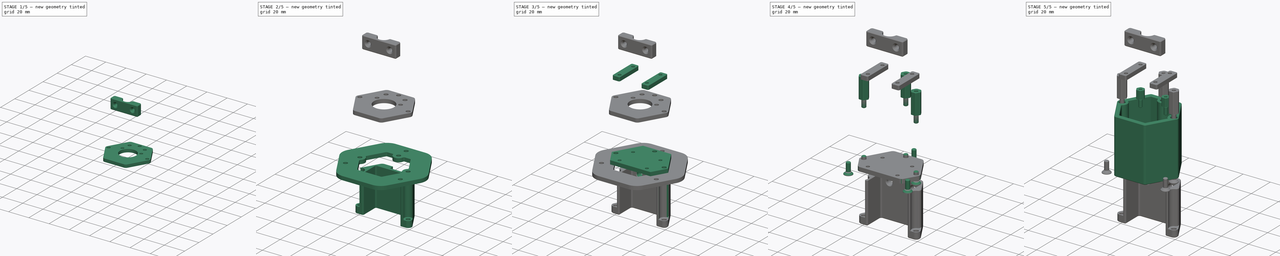
[diagram: build sequence overview — one tinted view per stage of 5, left to right]
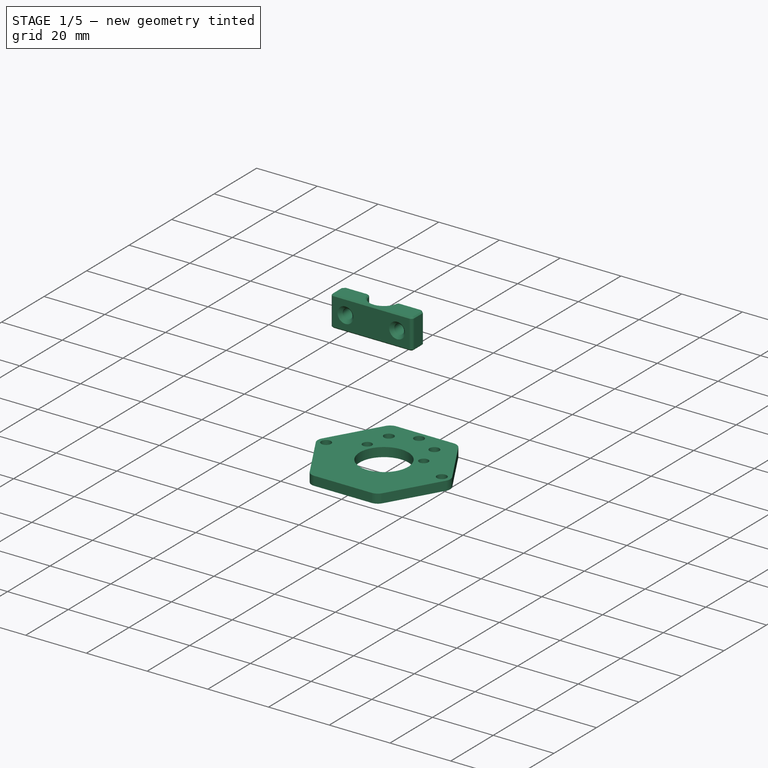
[diagram: stage 1 of 5 — iso view after this stage's code; geometry added in this stage tinted green]
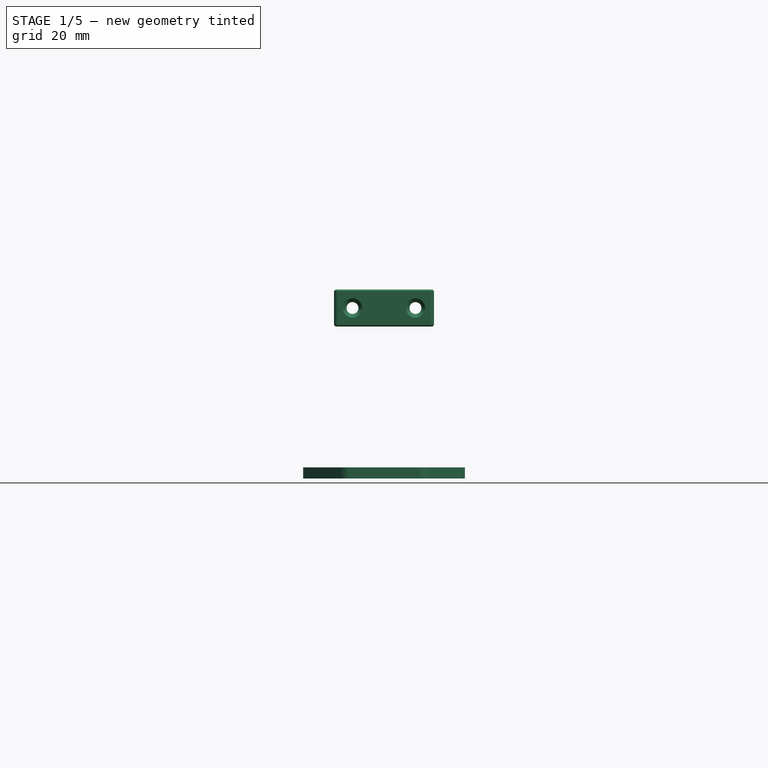
[diagram: stage 1 of 5 — front view after this stage's code; geometry added in this stage tinted green]
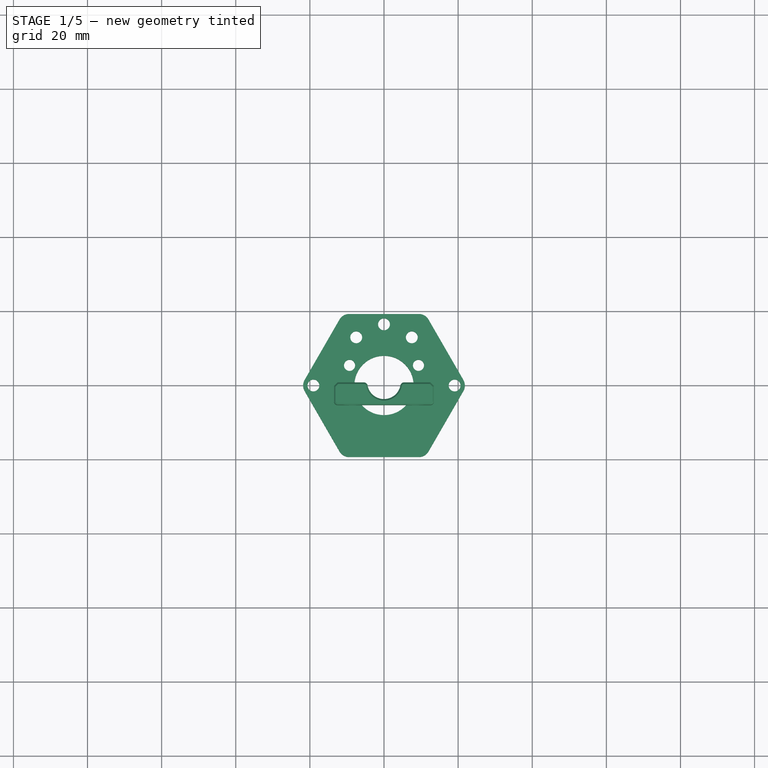
[diagram: stage 1 of 5 — top view after this stage's code; geometry added in this stage tinted green]
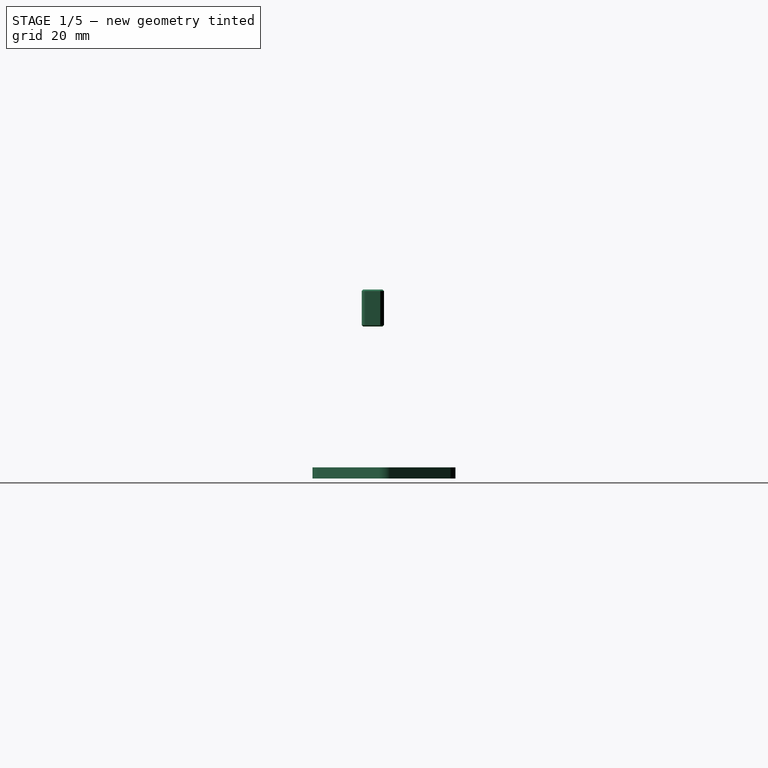
[diagram: stage 1 of 5 — right view after this stage's code; geometry added in this stage tinted green]
FCSTD DOCUMENT  (FreeCAD 2024.113R14555 (Git shallow))
Label: deplacement-sensor
License: Creative Commons Attribution-NoDerivatives
LicenseURL: http://creativecommons.org/licenses/by-nd/4.0/
objects: PartDesign::Fillet×15, Sketcher::SketchObject×13, Part::FeaturePython×11, PartDesign::Pad×8, PartDesign::Chamfer×7, PartDesign::Body×7, Part::SubShapeBinder×6, PartDesign::Pocket×5, App::DocumentObjectGroup×2, TechDraw::DrawProjGroupItem×2, TechDraw::DrawProjGroup×2, TechDraw::DrawSVGTemplate×1, PartDesign::Mirrored×1, App::Part×1, TechDraw::DrawPage×1
note: 158 computed .brp shape members not serialized (recipe doc carries the construction recipe); baked Part::Feature solids carry a one-line shape summary decoded from their .brp
EXTERNAL_REF file=../robot_holonome.FCStd obj=Part

FEATURE [Part::SubShapeBinder] Import001  label="Import001(Chamfer001)"
  BindCopyOnChange = 0
  BindMode = 0
  ClaimChildren = false
  Context = -> <external ../robot_holonome.FCStd>#Part [Link039.Body002.Import001.]
  EdgeTolerance = 1e-06
  FillStyle = 0
  Fuse = false
  InvalidShape = false
  MakeFace = false
  MergeEdges = true
  OffsetFill = false
  OffsetIntersection = false
  OffsetJoinType = 0
  OffsetOpenResult = false
  Outline = false
  PartialLoad = false
  Relative = true
  SplitEdges = false
  Support = -> [Body[Chamfer001.]]
  TightBound = false
  TreeRank = 45
  ValidateShape = true
  _Version = 8
FEATURE [Sketcher::SketchObject] Sketch004
  ArcFitTolerance = 1e-06
  AttachmentSupport = -> [Import001]
  ExternalBSplineMaxDegree = 5
  ExternalBSplineTolerance = 0.0001
  ExternalGeometry = -> [Import001]
  FullyConstrained = true
  InternalTolerance = 1e-06
  InvalidShape = false
  MakeInternals = true
  MapMode = 5
  Placement = pos=(0,0,40) rot=(0,0,1;0rad)
  Support = -> [Import001]
  TreeRank = 46
  ValidateShape = true
  sketch-geometry (26):
    g0: Circle CenterX=-19.0526 CenterY=1.233e-12 CenterZ=0 NormalX=0 NormalY=0 NormalZ=1 AngleXU=0 Radius=1.6
    g1: Circle CenterX=-1.1265e-12 CenterY=16.5 CenterZ=0 NormalX=0 NormalY=0 NormalZ=1 AngleXU=0 Radius=1.6
    g2: Circle CenterX=19.0526 CenterY=-3.5725e-12 CenterZ=0 NormalX=0 NormalY=0 NormalZ=1 AngleXU=0 Radius=1.6
    g3: Circle CenterX=7.21e-14 CenterY=2.4e-14 CenterZ=0 NormalX=0 NormalY=0 NormalZ=1 AngleXU=0 Radius=8
    g4: Circle CenterX=-9.3 CenterY=5.43 CenterZ=0 NormalX=0 NormalY=0 NormalZ=1 AngleXU=0 Radius=1.5
    g5: Circle CenterX=9.3 CenterY=5.43 CenterZ=0 NormalX=0 NormalY=0 NormalZ=1 AngleXU=0 Radius=1.5
    g6: LineSegment [constr] StartX=-12 StartY=-15.87 StartZ=0 EndX=-12 EndY=8.13 EndZ=0
    g7: LineSegment [constr] StartX=-12 StartY=8.13 StartZ=0 EndX=12 EndY=8.13 EndZ=0
    g8: LineSegment [constr] StartX=12 StartY=8.13 StartZ=0 EndX=12 EndY=-15.87 EndZ=0
    g9: LineSegment [constr] StartX=12 StartY=-15.87 StartZ=0 EndX=-12 EndY=-15.87 EndZ=0
    g10: GeomPoint [constr] X=7.801e-13 Y=-3.87 Z=0
    g11: LineSegment [constr] StartX=5.65685 StartY=5.65685 StartZ=0 EndX=-5.65685 EndY=5.65685 EndZ=0
    g12: LineSegment [constr] StartX=-5.65685 StartY=5.65685 StartZ=0 EndX=-5.65685 EndY=-5.65685 EndZ=0
    g13: LineSegment [constr] StartX=-5.65685 StartY=-5.65685 StartZ=0 EndX=5.65685 EndY=-5.65685 EndZ=0
    g14: LineSegment [constr] StartX=5.65685 StartY=-5.65685 StartZ=0 EndX=5.65685 EndY=5.65685 EndZ=0
    g15: Circle [constr] CenterX=7.21e-14 CenterY=2.4e-14 CenterZ=0 NormalX=0 NormalY=0 NormalZ=1 AngleXU=0 Radius=8
    g16: Circle CenterX=-7.5 CenterY=13 CenterZ=0 NormalX=0 NormalY=0 NormalZ=1 AngleXU=0 Radius=1.6
    g17: Circle CenterX=7.5 CenterY=13 CenterZ=0 NormalX=0 NormalY=0 NormalZ=1 AngleXU=0 Radius=1.6
    g18: Circle [constr] CenterX=7.5 CenterY=13 CenterZ=0 NormalX=0 NormalY=0 NormalZ=1 AngleXU=0 Radius=3.5
    g19: LineSegment StartX=-22.2857 StartY=1.963e-13 StartZ=0 EndX=-11.1429 EndY=-19.3 EndZ=0
    g20: LineSegment StartX=-11.1429 StartY=-19.3 StartZ=0 EndX=11.1429 EndY=-19.3 EndZ=0
    g21: LineSegment StartX=11.1429 StartY=-19.3 StartZ=0 EndX=22.2857 EndY=7.141e-13 EndZ=0
    g22: LineSegment StartX=22.2857 StartY=7.128e-13 StartZ=0 EndX=11.1429 EndY=19.3 EndZ=0
    g23: LineSegment StartX=11.1429 StartY=19.3 StartZ=0 EndX=-11.1429 EndY=19.3 EndZ=0
    g24: LineSegment StartX=-11.1429 StartY=19.3 StartZ=0 EndX=-22.2857 EndY=1.954e-13 EndZ=0
    g25: Circle [constr] CenterX=7.21e-14 CenterY=2.4e-14 CenterZ=0 NormalX=0 NormalY=0 NormalZ=1 AngleXU=0 Radius=22.2857
  constraints (64):
    c: Coincident(g0,g-4)
    c: Coincident(g1,g-3)
    c: Coincident(g2,g-5)
    c: Equal(g2,g1)
    c: Equal(g2,g0)
    c: Diameter(g2) = 3.2
    c: Coincident(g3,g-1)
    c: Diameter(g3) = 16
    c: Symmetric(g5,g4,g-2)
    c: Coincident(g6,g7)
    c: Coincident(g7,g8)
    c: Coincident(g8,g9)
    c: Coincident(g9,g6)
    c: Horizontal(g7)
    c: Horizontal(g9)
    c: Vertical(g6)
    c: Vertical(g8)
    c: Symmetric(g7,g6,g10)
    c: PointOnObject(g10,g-2)
    c: DistanceX(g7,g7) = 24
    c: DistanceY(g6,g6) = 24
    c: DistanceY(g3,g7) = 8.13
    c: DistanceY(g4,g6) = 2.7
    c: DistanceX(g6,g4) = 2.7
    c: Equal(g4,g5)
    c: Diameter(g4) = 3
    c: Coincident(g11,g12)
    c: Coincident(g12,g13)
    c: Coincident(g13,g14)
    c: Coincident(g14,g11)
    c: Equal(g11,g12)
    c: Equal(g11,g13)
    c: Equal(g11,g14)
    c: PointOnObject(g11,g15)
    c: PointOnObject(g12,g15)
    c: PointOnObject(g13,g15)
    c: PointOnObject(g14,g15)
    c: Coincident(g15,g3)
    c: PointOnObject(g14,g3)
    c: Horizontal(g11)
    c: DistanceX(g11,g11) = 11.3137
    c: Coincident(g18,g17)
    c: Equal(g17,g16)
    c: Diameter(g17) = 3.2
    c: Diameter(g18) = 7
    c: Symmetric(g17,g16,g-2)
    c: DistanceY(g3,g17) = 13
    c: DistanceX(g16,g17) = 15
    c: Coincident(g19,g20)
    c: Coincident(g20,g21)
    c: Coincident(g21,g22)
    c: Coincident(g22,g23)
    c: Coincident(g23,g24)
    c: Coincident(g24,g19)
    c: Equal(g19, g20-g24) x5
    c: PointOnObject(g19,g25)
    c: PointOnObject(g20,g25)
    c: PointOnObject(g21,g25)
    c: PointOnObject(g22,g25)
    c: PointOnObject(g23,g25)
    c: PointOnObject(g24,g25)
    c: Coincident(g25,g3)
    c: PointOnObject(g24,g-1)
    c: DistanceY(g3,g22) = 19.3
FEATURE [PartDesign::Pad] Pad003
  AddSubType = 0
  AlongSketchNormal = false
  AutoTaperInnerAngle = true
  CheckUpToFaceLimits = true
  ClaimChildren = false
  Direction = (0,0,1)
  Fit = 0
  FitJoin = 0
  InnerFit = 0
  InnerFitJoin = 0
  InvalidShape = false
  Length = 3
  Length2 = 100
  Linearize = true
  NewSolid = false
  Profile = -> Sketch004
  Refine = true
  Suppress = false
  TaperInnerAngle = 0
  TaperInnerAngleRev = 0
  TreeRank = 47
  Type = 0
  ValidateShape = true
  _ProfileBasedVersion = 1
FEATURE [PartDesign::Fillet] Fillet003
  AddSubType = 0
  Base = -> Pad003 [Edge11,Edge8,Edge5,Edge2,Edge1,Edge14]
  BaseFeature = -> Pad003
  InvalidShape = false
  NewSolid = false
  Radius = 3
  Refine = true
  SupportTransform = false
  Suppress = false
  TreeRank = 48
  UseAllEdges = false
  ValidateShape = true
FEATURE [PartDesign::Body] Body001  label="FixingPlate"
  AutoGroupSolids = false
  ClaimAllChildren = false
  ExportMode = 0
  Group = -> [Import,Sketch003,Pad002,Fillet002,Fillet012]
  InvalidShape = false
  Origin = -> Origin001
  SingleSolid = true
  Tip = -> Fillet012
  TreeRank = 30
  ValidateShape = true
  _ExportChildren = -> [Import,Pad002,Fillet002,Fillet012]
  _GroupVersion = 1
FEATURE [App::Part] Part  label="SensorDeplacement-assembled"
  ClaimAllChildren = false
  ExportMode = 1
  Group = -> [Body005,Body,Body001,Body002,Group,Body003,Body004,Standoff003,Standoff004,Screw007,Screw008,Standoff002,Screw006,Screw004,Screw005,Standoff001,Standoff,Screw003]
  Origin = -> Origin006
  TreeRank = 161
  _ExportChildren = -> [Body005,Body,Body001,Body002,Group,Body003,Body004]
  _GroupVersion = 1
FEATURE [TechDraw::DrawProjGroupItem] ProjItem  label="Front"
  CoarseView = false
  Direction = (0,0,-1)
  Focus = 100
  HardHidden = false
  IsoCount = 0
  IsoHidden = false
  IsoVisible = false
  LockPosition = true
  Perspective = false
  Rotation = 0
  RotationVector = (1,0,0)
  ScaleType = 2
  ScrubCount = 0
  SeamHidden = false
  SeamVisible = true
  SmoothHidden = false
  SmoothVisible = true
  Source = -> [Fillet012]
  TreeRank = 164
  Type = 0
  X = 0
  XDirection = (1,0,0)
  Y = 0
FEATURE [TechDraw::DrawProjGroup] ProjGroup
  Anchor = -> ProjItem
  AutoDistribute = true
  LockPosition = false
  ProjectionType = 0
  Rotation = 0
  ScaleType = 0
  Source = -> [Fillet012]
  TreeRank = 165
  Views = -> [ProjItem]
  X = 37.1712
  Y = 176.63
  spacingX = 15
  spacingY = 15
FEATURE [TechDraw::DrawProjGroupItem] ProjItem001  label="Front001"
  CoarseView = false
  Direction = (0,0,-1)
  Focus = 100
  HardHidden = false
  IsoCount = 0
  IsoHidden = false
  IsoVisible = false
  LockPosition = true
  Perspective = false
  Rotation = 0
  RotationVector = (1,0,0)
  ScaleType = 2
  ScrubCount = 0
  SeamHidden = false
  SeamVisible = true
  SmoothHidden = false
  SmoothVisible = true
  Source = -> [Fillet003]
  TreeRank = 167
  Type = 0
  X = 0
  XDirection = (1,0,0)
  Y = 0
FEATURE [TechDraw::DrawProjGroup] ProjGroup001
  Anchor = -> ProjItem001
  AutoDistribute = true
  LockPosition = false
  ProjectionType = 0
  Rotation = 0
  ScaleType = 0
  Source = -> [Fillet003]
  TreeRank = 168
  Views = -> [ProjItem001]
  X = 25.3767
  Y = 124.274
  spacingX = 15
  spacingY = 15
FEATURE [TechDraw::DrawPage] Page001  label="Laser3mmSensorDeplacement"
  KeepUpdated = true
  NextBalloonIndex = 1
  ProjectionType = 0
  Template = -> Template001
  TreeRank = 103
  Views = -> [ProjGroup,ProjGroup001]
FEATURE [App::DocumentObjectGroup] Group001  label="Laser"
  ClaimAllChildren = true
  ExportMode = 1
  Group = -> [Page001]
  TreeRank = 158
  _GroupVersion = 1
FEATURE [Part::SubShapeBinder] Import005  label="Import005(Chamfer003)"
  BindCopyOnChange = 0
  BindMode = 0
  ClaimChildren = false
  Context = -> Body006 [Import005.]
  EdgeTolerance = 1e-06
  FillStyle = 0
  FixShape = 1
  Fuse = false
  InvalidShape = false
  MakeFace = false
  MergeEdges = true
  OffsetFill = false
  OffsetIntersection = false
  OffsetJoinType = 0
  OffsetOpenResult = false
  Outline = false
  PartialLoad = false
  Relative = true
  SplitEdges = false
  Support = -> [Part[Body005.Chamfer003.]]
  TightBound = false
  TreeRank = 180
  ValidateShape = false
  _Version = 8
FEATURE [Sketcher::SketchObject] Sketch011
  ArcFitTolerance = 1e-06
  AttachmentSupport = -> [XZ_Plane006]
  ExternalBSplineMaxDegree = 5
  ExternalBSplineTolerance = 0.0001
  ExternalGeometry = -> [Import005]
  FixShape = 1
  FullyConstrained = true
  InternalTolerance = 1e-06
  InvalidShape = false
  MakeInternals = false
  MapMode = 5
  Placement = pos=(0,0,0) rot=(1,0,0;1.5708rad)
  Support = -> [XZ_Plane006]
  TreeRank = 179
  ValidateShape = false
  sketch-geometry (7):
    g0: Circle CenterX=-8.5 CenterY=86 CenterZ=0 NormalX=0 NormalY=0 NormalZ=1 AngleXU=0 Radius=1.6
    g1: Circle CenterX=8.5 CenterY=86 CenterZ=0 NormalX=0 NormalY=0 NormalZ=1 AngleXU=0 Radius=1.6
    g2: LineSegment StartX=-13.5 StartY=91 StartZ=0 EndX=-13.5 EndY=81 EndZ=0
    g3: LineSegment StartX=-13.5 StartY=81 StartZ=0 EndX=13.5 EndY=81 EndZ=0
    g4: LineSegment StartX=13.5 StartY=81 StartZ=0 EndX=13.5 EndY=91 EndZ=0
    g5: LineSegment StartX=13.5 StartY=91 StartZ=0 EndX=-13.5 EndY=91 EndZ=0
    g6: GeomPoint [constr] X=7e-16 Y=86 Z=0
  constraints (16):
    c: Coincident(g0,g-3)
    c: Coincident(g1,g-4)
    c: Equal(g1,g0)
    c: Diameter(g1) = 3.2
    c: Coincident(g2,g3)
    c: Coincident(g3,g4)
    c: Coincident(g4,g5)
    c: Coincident(g5,g2)
    c: Horizontal(g3)
    c: Horizontal(g5)
    c: Vertical(g2)
    c: Vertical(g4)
    c: Symmetric(g3,g2,g6)
    c: Symmetric(g0,g1,g6)
    c: DistanceY(g4,g4) = 10
    c: DistanceX(g5,g5) = 27
FEATURE [PartDesign::Pad] Pad007
  AddSubType = 0
  AlongSketchNormal = false
  AutoTaperInnerAngle = true
  CheckUpToFaceLimits = true
  ClaimChildren = false
  Direction = (0,-1,2e-16)
  Fit = 0
  FitJoin = 0
  FixShape = 1
  InnerFit = 0
  InnerFitJoin = 0
  InvalidShape = false
  Length = 6
  Length2 = 10
  Linearize = true
  NewSolid = false
  Profile = -> Sketch011
  ReferenceAxis = -> Sketch011 [N_Axis]
  Refine = true
  Suppress = false
  TaperInnerAngle = 0
  TaperInnerAngleRev = 0
  TreeRank = 181
  Type = 0
  ValidateShape = true
  _ProfileBasedVersion = 1
FEATURE [Sketcher::SketchObject] Sketch012
  ArcFitTolerance = 1e-06
  AttachmentSupport = -> [Pad007]
  ExternalBSplineMaxDegree = 5
  ExternalBSplineTolerance = 0.0001
  FixShape = 1
  FullyConstrained = true
  InternalTolerance = 1e-06
  InvalidShape = false
  MakeInternals = false
  MapMode = 5
  Placement = pos=(0,2.02e-14,91) rot=(0,0,1;0rad)
  Support = -> [Pad007]
  TreeRank = 182
  ValidateShape = false
  sketch-geometry (1):
    g0: Circle CenterX=0 CenterY=0 CenterZ=0 NormalX=0 NormalY=0 NormalZ=1 AngleXU=0 Radius=4.5
  constraints (2):
    c: Coincident(g0,g-1)
    c: Diameter(g0) = 9
FEATURE [PartDesign::Pocket] Pocket004
  AddSubType = 1
  AlongSketchNormal = false
  AutoTaperInnerAngle = true
  BaseFeature = -> Pad007
  CheckUpToFaceLimits = true
  ClaimChildren = false
  Direction = (0,-2e-16,-1)
  Fit = 0
  FitJoin = 0
  FixShape = 1
  InnerFit = 0
  InnerFitJoin = 0
  InvalidShape = false
  Length = 5
  Length2 = 10
  Linearize = true
  NewSolid = false
  Profile = -> Sketch012
  ReferenceAxis = -> Sketch012 [N_Axis]
  Refine = true
  Suppress = false
  TaperInnerAngle = 0
  TaperInnerAngleRev = 0
  TreeRank = 183
  Type = 1
  ValidateShape = true
  _ProfileBasedVersion = 1
  _Version = 1
FEATURE [PartDesign::Fillet] Fillet013
  AddSubType = 0
  Base = -> Pocket004 [Edge15,Edge20]
  BaseFeature = -> Pocket004
  FixShape = 1
  InvalidShape = false
  NewSolid = false
  Radius = 1
  Refine = true
  SupportTransform = false
  Suppress = false
  TreeRank = 184
  UseAllEdges = false
  ValidateShape = true
FEATURE [PartDesign::Fillet] Fillet014
  AddSubType = 0
  Base = -> Fillet013 [Edge19,Edge16]
  BaseFeature = -> Fillet013
  FixShape = 1
  InvalidShape = false
  NewSolid = false
  Radius = 1
  Refine = true
  SupportTransform = false
  Suppress = false
  TreeRank = 185
  UseAllEdges = false
  ValidateShape = true
FEATURE [PartDesign::Chamfer] Chamfer004
  AddSubType = 0
  Angle = 45
  Base = -> Fillet014 [Edge29,Edge13]
  BaseFeature = -> Fillet014
  ChamferType = 0
  FixShape = 1
  FlipDirection = false
  InvalidShape = false
  NewSolid = false
  Refine = true
  Size = 1
  Size2 = 1
  SupportTransform = false
  Suppress = false
  TreeRank = 186
  UseAllEdges = false
  ValidateShape = true
FEATURE [PartDesign::Chamfer] Chamfer005
  AddSubType = 0
  Angle = 45
  Base = -> Chamfer004 [Edge25,Edge40,Edge22,Edge26]
  BaseFeature = -> Chamfer004
  ChamferType = 0
  FixShape = 1
  FlipDirection = false
  InvalidShape = false
  NewSolid = false
  Refine = true
  Size = 1
  Size2 = 1
  SupportTransform = false
  Suppress = false
  TreeRank = 187
  UseAllEdges = false
  ValidateShape = true
FEATURE [PartDesign::Chamfer] Chamfer006
  AddSubType = 0
  Angle = 45
  Base = -> Chamfer005 [Face6,Face3]
  BaseFeature = -> Chamfer005
  ChamferType = 0
  FixShape = 1
  FlipDirection = false
  InvalidShape = false
  NewSolid = false
  Refine = true
  Size = 0.4
  Size2 = 1
  SupportTransform = false
  Suppress = false
  TreeRank = 188
  UseAllEdges = false
  ValidateShape = true
FEATURE [PartDesign::Body] Body006  label="BrideCable"
  AutoGroupSolids = false
  ClaimAllChildren = false
  ExportMode = 0
  FixShape = 1
  Group = -> [Sketch011,Import005,Pad007,Sketch012,Pocket004,Fillet013,Fillet014,Chamfer004,Chamfer005,Chamfer006]
  InvalidShape = false
  Origin = -> Origin007
  Placement = pos=(0,11.2,0) rot=(0,0,1;0rad)
  SingleSolid = true
  Tip = -> Chamfer006
  TreeRank = 178
  ValidateShape = false
  _ExportChildren = -> [Import005,Pad007,Pocket004,Fillet013,Fillet014,Chamfer004,Chamfer005,Chamfer006]
  _GroupVersion = 1
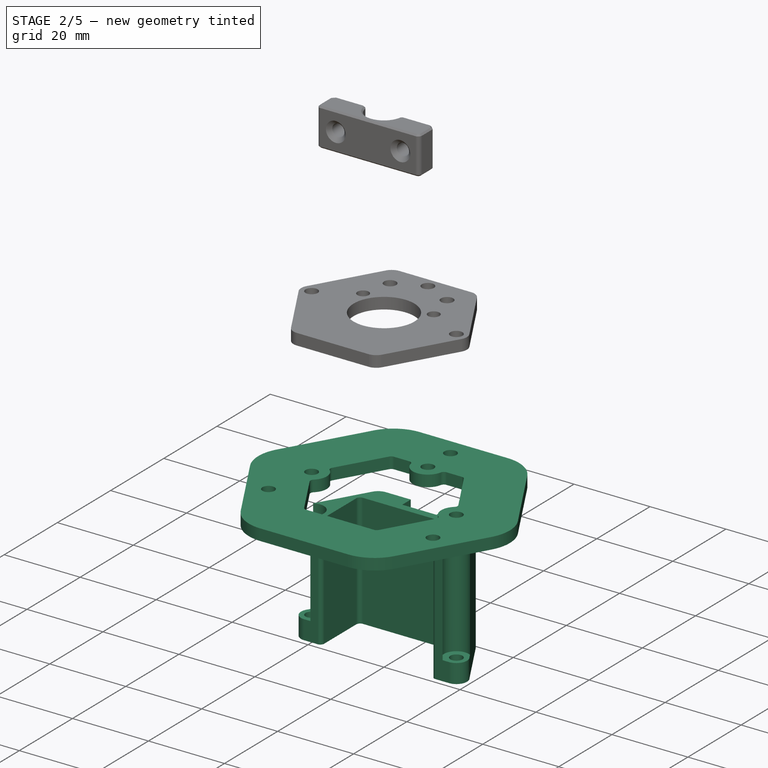
[diagram: stage 2 of 5 — iso view after this stage's code; geometry added in this stage tinted green]
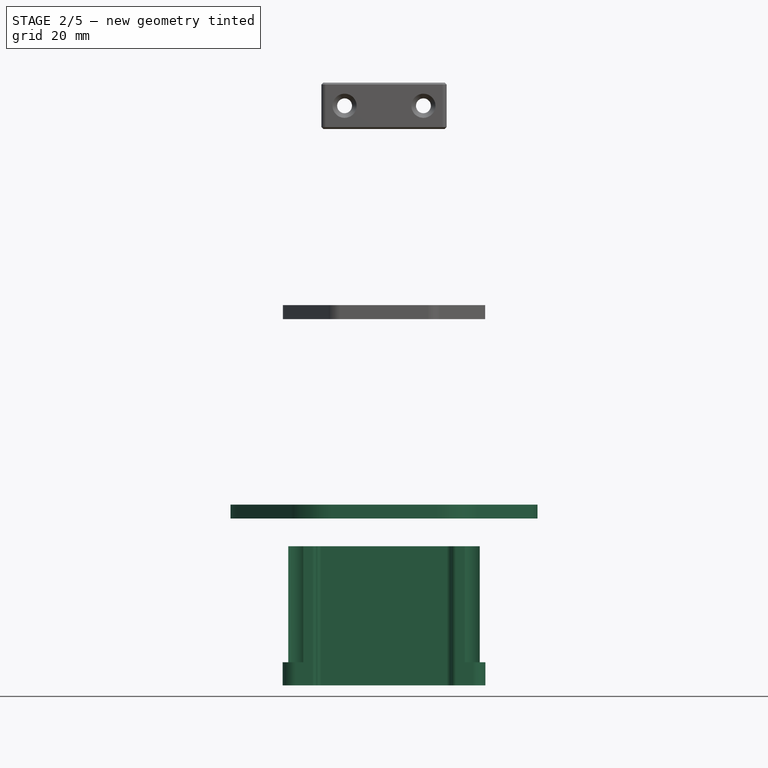
[diagram: stage 2 of 5 — front view after this stage's code; geometry added in this stage tinted green]
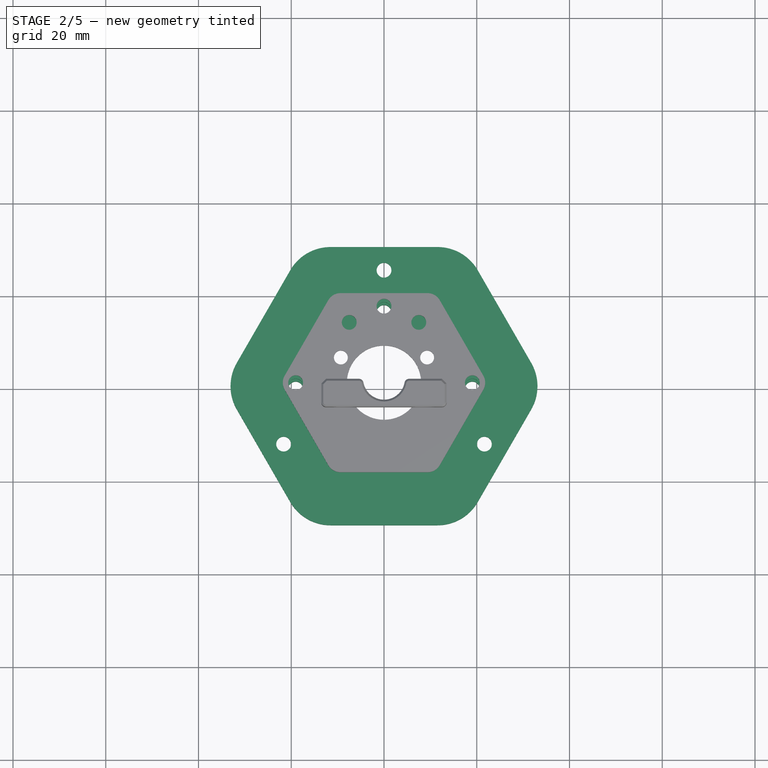
[diagram: stage 2 of 5 — top view after this stage's code; geometry added in this stage tinted green]
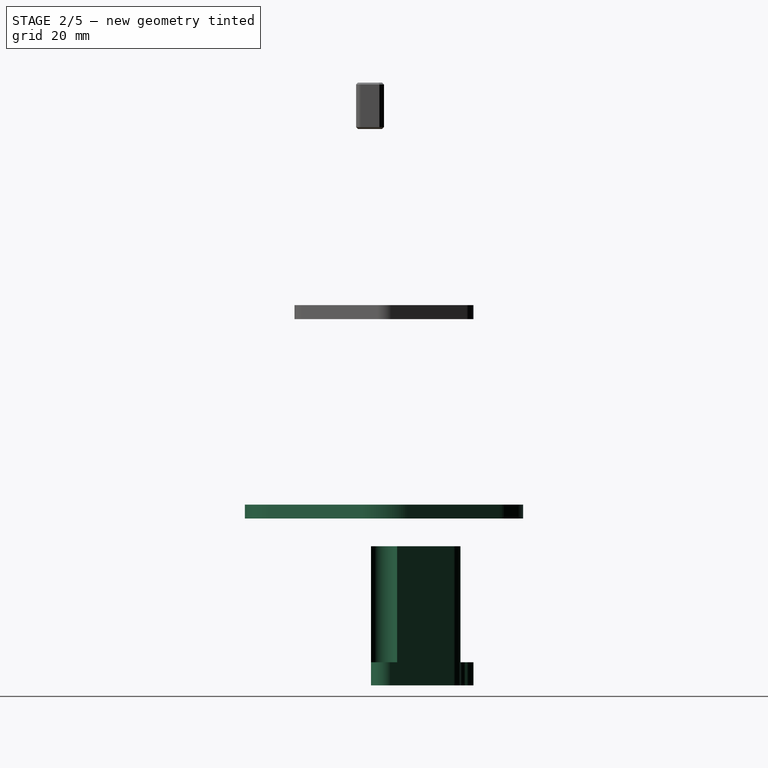
[diagram: stage 2 of 5 — right view after this stage's code; geometry added in this stage tinted green]
FEATURE [PartDesign::Body] Body  label="MainTube"
  AutoGroupSolids = false
  ClaimAllChildren = false
  ExportMode = 0
  Group = -> [Sketch,Pad,Sketch001,Pad001,Fillet,Fillet001,Chamfer,Sketch002,Pocket,Chamfer001]
  InvalidShape = false
  Origin = -> Origin
  SingleSolid = true
  Tip = -> Chamfer001
  TreeRank = 10
  ValidateShape = true
  _ExportChildren = -> [Pad,Pad001,Fillet,Fillet001,Chamfer,Pocket,Chamfer001]
  _GroupVersion = 1
FEATURE [Part::SubShapeBinder] Import  label="Import(Chamfer001)"
  BindCopyOnChange = 0
  BindMode = 0
  ClaimChildren = false
  Context = -> <external ../robot_holonome.FCStd>#Part [Link039.Body001.Import.]
  EdgeTolerance = 1e-06
  FillStyle = 0
  Fuse = false
  InvalidShape = false
  MakeFace = false
  MergeEdges = true
  OffsetFill = false
  OffsetIntersection = false
  OffsetJoinType = 0
  OffsetOpenResult = false
  Outline = false
  PartialLoad = false
  Relative = true
  SplitEdges = false
  Support = -> [Body[Chamfer001.]]
  TightBound = false
  TreeRank = 31
  ValidateShape = true
  _Version = 8
FEATURE [Sketcher::SketchObject] Sketch003
  ArcFitTolerance = 1e-06
  AttachmentSupport = -> [Import]
  ExternalBSplineMaxDegree = 5
  ExternalBSplineTolerance = 0.0001
  ExternalGeometry = -> [Import]
  FullyConstrained = true
  InternalTolerance = 1e-06
  InvalidShape = false
  MakeInternals = true
  MapMode = 5
  Placement = pos=(0,0,0) rot=(1,0,0;3.14159rad)
  Support = -> [Import]
  TreeRank = 32
  ValidateShape = true
  sketch-geometry (17):
    g0: Circle [constr] CenterX=3.411e-13 CenterY=-1.722e-12 CenterZ=0 NormalX=0 NormalY=0 NormalZ=1 AngleXU=0 Radius=12.5
    g1: Circle CenterX=-19.0526 CenterY=-1.233e-12 CenterZ=0 NormalX=0 NormalY=0 NormalZ=1 AngleXU=0 Radius=1.6
    g2: Circle CenterX=19.0526 CenterY=3.5725e-12 CenterZ=0 NormalX=0 NormalY=0 NormalZ=1 AngleXU=0 Radius=1.6
    g3: Circle CenterX=-1.1265e-12 CenterY=-16.5 CenterZ=0 NormalX=0 NormalY=0 NormalZ=1 AngleXU=0 Radius=1.6
    g4: Circle CenterX=-21.6506 CenterY=12.5 CenterZ=0 NormalX=0 NormalY=0 NormalZ=1 AngleXU=0 Radius=1.6
    g5: Circle CenterX=21.6506 CenterY=12.5 CenterZ=0 NormalX=0 NormalY=0 NormalZ=1 AngleXU=0 Radius=1.6
    g6: Circle CenterX=4.3e-15 CenterY=-25 CenterZ=0 NormalX=0 NormalY=0 NormalZ=1 AngleXU=0 Radius=1.6
    g7: LineSegment [constr] StartX=3.411e-13 StartY=-1.722e-12 StartZ=0 EndX=-21.6506 EndY=12.5 EndZ=0
    g8: LineSegment [constr] StartX=3.411e-13 StartY=-1.722e-12 StartZ=0 EndX=21.6506 EndY=12.5 EndZ=0
    g9: LineSegment [constr] StartX=3.411e-13 StartY=-1.722e-12 StartZ=0 EndX=4.3e-15 EndY=-25 EndZ=0
    g10: LineSegment StartX=-34.641 StartY=1.2879e-12 StartZ=0 EndX=-17.3205 EndY=-30 EndZ=0
    g11: LineSegment StartX=-17.3205 StartY=-30 StartZ=0 EndX=17.3205 EndY=-30 EndZ=0
    g12: LineSegment StartX=17.3205 StartY=-30 StartZ=0 EndX=34.641 EndY=1.3252e-12 EndZ=0
    g13: LineSegment StartX=34.641 StartY=1.324e-12 StartZ=0 EndX=17.3205 EndY=30 EndZ=0
    g14: LineSegment StartX=17.3205 StartY=30 StartZ=0 EndX=-17.3205 EndY=30 EndZ=0
    g15: LineSegment StartX=-17.3205 StartY=30 StartZ=0 EndX=-34.641 EndY=1.2896e-12 EndZ=0
    g16: Circle [constr] CenterX=3.411e-13 CenterY=-1.722e-12 CenterZ=0 NormalX=0 NormalY=0 NormalZ=1 AngleXU=0 Radius=34.641
  constraints (38):
    c: Coincident(g0,g-1)
    c: Diameter(g0) = 25
    c: Coincident(g1,g-5)
    c: Coincident(g2,g-3)
    c: Coincident(g3,g-4)
    c: Equal(g3,g1)
    c: Equal(g3,g2)
    c: Diameter(g3) = 3.2
    c: PointOnObject(g6,g-2)
    c: DistanceY(g6,g0) = 25
    c: Equal(g6,g5)
    c: Equal(g6,g4)
    c: Diameter(g6) = 3.2
    c: Coincident(g7,g0)
    c: Coincident(g7,g4)
    c: Coincident(g8,g0)
    c: Coincident(g8,g5)
    c: Angle(g-1,g8) = 0.523599
    c: Symmetric(g4,g5,g-2)
    c: Coincident(g9,g0)
    c: Coincident(g9,g6)
    c: Equal(g9,g7)
    c: Coincident(g10,g11)
    c: Coincident(g11,g12)
    c: Coincident(g12,g13)
    c: Coincident(g13,g14)
    c: Coincident(g14,g15)
    c: Coincident(g15,g10)
    c: Equal(g10, g11-g15) x5
    c: PointOnObject(g10,g16)
    c: PointOnObject(g11,g16)
    c: PointOnObject(g12,g16)
    c: PointOnObject(g13,g16)
    c: PointOnObject(g14,g16)
    c: PointOnObject(g15,g16)
    c: Coincident(g16,g0)
    c: PointOnObject(g15,g-1)
    c: DistanceY(g10,g0) = 30
FEATURE [PartDesign::Pad] Pad002
  AddSubType = 0
  AlongSketchNormal = false
  AutoTaperInnerAngle = true
  CheckUpToFaceLimits = true
  ClaimChildren = false
  Direction = (0,0,-1)
  Fit = 0
  FitJoin = 0
  InnerFit = 0
  InnerFitJoin = 0
  InvalidShape = false
  Length = 3
  Length2 = 100
  Linearize = true
  NewSolid = false
  Profile = -> Sketch003
  Refine = true
  Suppress = false
  TaperInnerAngle = 0
  TaperInnerAngleRev = 0
  TreeRank = 33
  Type = 0
  ValidateShape = true
  _ProfileBasedVersion = 1
FEATURE [PartDesign::Fillet] Fillet002
  AddSubType = 0
  Base = -> Pad002 [Edge8,Edge5,Edge11,Edge14,Edge2,Edge1]
  BaseFeature = -> Pad002
  InvalidShape = false
  NewSolid = false
  Radius = 10
  Refine = true
  SupportTransform = false
  Suppress = false
  TreeRank = 34
  UseAllEdges = false
  ValidateShape = true
FEATURE [PartDesign::Body] Body004  label="SpacerBNO055"
  AutoGroupSolids = false
  ClaimAllChildren = false
  ExportMode = 0
  Group = -> [Import003,Sketch006,Pad005,Fillet005]
  InvalidShape = false
  Origin = -> Origin004
  Tip = -> Fillet005
  TreeRank = 122
  ValidateShape = true
  _ExportChildren = -> [Import003,Pad005,Fillet005]
  _GroupVersion = 1
FEATURE [Part::SubShapeBinder] Import004  label="Import004(Fillet004)"
  BindCopyOnChange = 0
  BindMode = 0
  ClaimChildren = false
  Context = -> <external ../robot_holonome.FCStd>#Part [Link039.Body005.Import004.]
  EdgeTolerance = 1e-06
  FillStyle = 0
  Fuse = false
  InvalidShape = false
  MakeFace = false
  MergeEdges = true
  OffsetFill = false
  OffsetIntersection = false
  OffsetJoinType = 0
  OffsetOpenResult = false
  Outline = false
  PartialLoad = false
  Relative = true
  SplitEdges = false
  Support = -> [Body003[Fillet004.]]
  TightBound = false
  TreeRank = 140
  ValidateShape = true
  _Version = 8
FEATURE [Sketcher::SketchObject] Sketch007
  ArcFitTolerance = 1e-06
  AttachmentSupport = -> [Import004]
  ExternalBSplineMaxDegree = 5
  ExternalBSplineTolerance = 0.0001
  ExternalGeometry = -> [Import004]
  FullyConstrained = true
  InternalTolerance = 1e-06
  InvalidShape = false
  MakeInternals = true
  MapMode = 5
  Placement = pos=(0,0,-39) rot=(0,0,1;0rad)
  Support = -> [Import004]
  TreeRank = 141
  ValidateShape = true
  sketch-geometry (11):
    g0: Circle CenterX=-19.0526 CenterY=-9.051e-13 CenterZ=0 NormalX=0 NormalY=0 NormalZ=1 AngleXU=0 Radius=1.6
    g1: Circle [constr] CenterX=-19.0526 CenterY=-9.051e-13 CenterZ=0 NormalX=0 NormalY=0 NormalZ=1 AngleXU=0 Radius=2.80238
    g2: Circle [constr] CenterX=-2.6316e-12 CenterY=16.5 CenterZ=0 NormalX=0 NormalY=0 NormalZ=1 AngleXU=0 Radius=2.80238
    g3: ArcOfCircle CenterX=-19.0526 CenterY=-9.051e-13 CenterZ=0 NormalX=0 NormalY=0 NormalZ=1 AngleXU=0 Radius=2.80238 StartAngle=2.57678 EndAngle=4.71239
    g4: LineSegment StartX=-14.5 StartY=-2.80238 StartZ=0 EndX=-14.5 EndY=11.3 EndZ=0
    g5: LineSegment StartX=-14.5 StartY=11.3 StartZ=0 EndX=0 EndY=11.3 EndZ=0
    g6: LineSegment StartX=-19.0526 StartY=-2.80238 StartZ=0 EndX=-14.5 EndY=-2.80238 EndZ=0
    g7: LineSegment StartX=-21.4197 StartY=1.5 StartZ=0 EndX=-12.7594 EndY=16.5 EndZ=0
    g8: LineSegment StartX=-12.7594 StartY=16.5 StartZ=0 EndX=-2.80238 EndY=16.5 EndZ=0
    g9: ArcOfCircle CenterX=-2.6316e-12 CenterY=16.5 CenterZ=0 NormalX=0 NormalY=0 NormalZ=1 AngleXU=0 Radius=2.80238 StartAngle=1.5708 EndAngle=3.14159
    g10: LineSegment StartX=0 StartY=11.3 StartZ=0 EndX=7.13e-13 EndY=19.3024 EndZ=0
  constraints (28):
    c: Coincident(g0,g-3)
    c: Diameter(g0) = 3.2
    c: Coincident(g1,g0)
    c: Equal(g2,g1)
    c: Coincident(g3,g0)
    c: PointOnObject(g3,g1)
    c: Vertical(g4)
    c: Coincident(g5,g4)
    c: PointOnObject(g5,g-2)
    c: Horizontal(g5)
    c: DistanceX(g4,g-1) = 14.5
    c: DistanceY(g-1,g5) = 11.3
    c: Coincident(g6,g4)
    c: Horizontal(g6)
    c: Tangent(g6,g3) = -1.5708
    c: PointOnObject(g7,g-5)
    c: Coincident(g8,g7)
    c: PointOnObject(g8,g2)
    c: Horizontal(g8)
    c: Coincident(g9,g8)
    c: PointOnObject(g9,g-2)
    c: Coincident(g3,g7)
    c: Coincident(g10,g5)
    c: Coincident(g10,g9)
    c: Coincident(g3,g-5)
    c: Coincident(g2,g9)
    c: Coincident(g2,g-4)
    c: PointOnObject(g9,g8)
FEATURE [PartDesign::Pad] Pad006
  AddSubType = 0
  AlongSketchNormal = false
  AutoTaperInnerAngle = true
  CheckUpToFaceLimits = true
  ClaimChildren = false
  Direction = (0,0,1)
  Fit = 0
  FitJoin = 0
  InnerFit = 0
  InnerFitJoin = 0
  InvalidShape = false
  Length = 30
  Length2 = 100
  Linearize = true
  NewSolid = false
  Profile = -> Sketch007
  Refine = true
  Suppress = false
  TaperInnerAngle = 0
  TaperInnerAngleRev = 0
  TreeRank = 142
  Type = 0
  ValidateShape = true
  _ProfileBasedVersion = 1
FEATURE [PartDesign::Mirrored] Mirrored
  AddSubType = 0
  BaseFeature = -> Pad006
  CopyShape = false
  InvalidShape = false
  MirrorPlane = -> Sketch007 [V_Axis]
  NewSolid = false
  OriginalSubs = -> [Pad006]
  Originals = -> [Pad006]
  ParallelTransform = true
  Refine = true
  SubTransform = true
  Suppress = false
  TreeRank = 143
  ValidateShape = true
  _Version = 3
FEATURE [Sketcher::SketchObject] Sketch008
  ArcFitTolerance = 1e-06
  AttachmentSupport = -> [Mirrored]
  ExternalBSplineMaxDegree = 5
  ExternalBSplineTolerance = 0.0001
  ExternalGeometry = -> [Mirrored]
  FullyConstrained = true
  InternalTolerance = 1e-06
  InvalidShape = false
  MakeInternals = true
  MapMode = 5
  Placement = pos=(0,0,-9) rot=(0,0,1;0rad)
  Support = -> [Mirrored]
  TreeRank = 144
  ValidateShape = true
  sketch-geometry (1):
    g0: Circle CenterX=-5.446e-13 CenterY=16.5 CenterZ=0 NormalX=0 NormalY=0 NormalZ=1 AngleXU=0 Radius=1.6
  constraints (2):
    c: Coincident(g0,g-3)
    c: Diameter(g0) = 3.2
FEATURE [PartDesign::Pocket] Pocket001
  AddSubType = 1
  AutoTaperInnerAngle = true
  BaseFeature = -> Mirrored
  CheckUpToFaceLimits = true
  ClaimChildren = false
  Direction = (0,0,-1)
  Fit = 0
  FitJoin = 0
  InnerFit = 0
  InnerFitJoin = 0
  InvalidShape = false
  Length = 5
  Length2 = 100
  Linearize = true
  NewSolid = false
  Profile = -> Sketch008
  Refine = true
  Suppress = false
  TaperInnerAngle = 0
  TaperInnerAngleRev = 0
  TreeRank = 145
  Type = 1
  ValidateShape = true
  _ProfileBasedVersion = 1
  _Version = 1
FEATURE [PartDesign::Fillet] Fillet006
  AddSubType = 0
  Base = -> Pocket001 [Edge37,Edge39]
  BaseFeature = -> Pocket001
  InvalidShape = false
  NewSolid = false
  Radius = 2
  Refine = true
  SupportTransform = false
  Suppress = false
  TreeRank = 146
  UseAllEdges = false
  ValidateShape = true
FEATURE [PartDesign::Fillet] Fillet007
  AddSubType = 0
  Base = -> Fillet006 [Edge35,Edge39,Edge43,Edge31]
  BaseFeature = -> Fillet006
  InvalidShape = false
  NewSolid = false
  Radius = 1
  Refine = true
  SupportTransform = false
  Suppress = false
  TreeRank = 147
  UseAllEdges = false
  ValidateShape = true
FEATURE [PartDesign::Fillet] Fillet008
  AddSubType = 0
  Base = -> Fillet007 [Edge55,Edge32]
  BaseFeature = -> Fillet007
  InvalidShape = false
  NewSolid = false
  Radius = 3
  Refine = true
  SupportTransform = false
  Suppress = false
  TreeRank = 148
  UseAllEdges = false
  ValidateShape = true
FEATURE [Sketcher::SketchObject] Sketch009
  ArcFitTolerance = 1e-06
  AttachmentSupport = -> [Fillet008]
  ExternalBSplineMaxDegree = 5
  ExternalBSplineTolerance = 0.0001
  ExternalGeometry = -> [Fillet008]
  FullyConstrained = true
  InternalTolerance = 1e-06
  InvalidShape = false
  MakeInternals = true
  MapMode = 5
  Placement = pos=(0,0,-9) rot=(0,0,1;0rad)
  Support = -> [Fillet008]
  TreeRank = 149
  ValidateShape = true
  sketch-geometry (7):
    g0: Circle CenterX=-19.0526 CenterY=-9.051e-13 CenterZ=0 NormalX=0 NormalY=0 NormalZ=1 AngleXU=0 Radius=3.25
    g1: Circle CenterX=19.0526 CenterY=-9.051e-13 CenterZ=0 NormalX=0 NormalY=0 NormalZ=1 AngleXU=0 Radius=3.25
    g2: LineSegment StartX=-4.5 StartY=13.3 StartZ=0 EndX=-4.5 EndY=19.7 EndZ=0
    g3: LineSegment StartX=-4.5 StartY=19.7 StartZ=0 EndX=4.5 EndY=19.7 EndZ=0
    g4: LineSegment StartX=4.5 StartY=19.7 StartZ=0 EndX=4.5 EndY=13.3 EndZ=0
    g5: LineSegment StartX=4.5 StartY=13.3 StartZ=0 EndX=-4.5 EndY=13.3 EndZ=0
    g6: GeomPoint [constr] X=2.6977e-12 Y=16.5 Z=0
  constraints (16):
    c: Coincident(g0,g-3)
    c: Coincident(g1,g-5)
    c: Equal(g1,g0)
    c: Diameter(g1) = 6.5
    c: Coincident(g2,g3)
    c: Coincident(g3,g4)
    c: Coincident(g4,g5)
    c: Coincident(g5,g2)
    c: Horizontal(g3)
    c: Horizontal(g5)
    c: Vertical(g2)
    c: Vertical(g4)
    c: Symmetric(g3,g2,g6)
    c: Coincident(g6,g-4)
    c: DistanceY(g-4,g3) = 3.2
    c: DistanceX(g3,g3) = 9
FEATURE [PartDesign::Pocket] Pocket002
  AddSubType = 1
  AutoTaperInnerAngle = true
  BaseFeature = -> Fillet008
  CheckUpToFaceLimits = true
  ClaimChildren = false
  Direction = (0,0,-1)
  Fit = 0
  FitJoin = 0
  InnerFit = 0
  InnerFitJoin = 0
  InvalidShape = false
  Length = 25
  Length2 = 100
  Linearize = true
  NewSolid = false
  Profile = -> Sketch009
  Refine = true
  Suppress = false
  TaperInnerAngle = 0
  TaperInnerAngleRev = 0
  TreeRank = 150
  Type = 0
  ValidateShape = true
  _ProfileBasedVersion = 1
  _Version = 1
FEATURE [PartDesign::Body] Body005  label="SupportPCB"
  AutoGroupSolids = false
  ClaimAllChildren = false
  ExportMode = 0
  Group = -> [Import004,Sketch007,Pad006,Mirrored,Sketch008,Pocket001,Fillet006,Fillet007,Fillet008,Sketch009,Pocket002,Fillet009,Fillet010,Fillet011,Sketch010,Pocket003,Chamfer002,Chamfer003]
  InvalidShape = false
  Origin = -> Origin005
  Placement = pos=(0,0,100) rot=(0,0,1;0rad)
  SingleSolid = true
  Tip = -> Chamfer003
  TreeRank = 139
  ValidateShape = true
  _ExportChildren = -> [Import004,Pad006,Mirrored,Pocket001,Fillet006,Fillet007,Fillet008,Pocket002,Fillet009,Fillet010,Fillet011,Pocket003,Chamfer002,Chamfer003]
  _GroupVersion = 1
FEATURE [PartDesign::Fillet] Fillet012
  AddSubType = 0
  Base = -> Fillet002 [Edge81,Edge82,Edge87,Edge92]
  BaseFeature = -> Fillet002
  FixShape = 1
  InvalidShape = false
  NewSolid = false
  Radius = 1
  Refine = true
  SupportTransform = false
  Suppress = false
  TreeRank = 162
  UseAllEdges = false
  ValidateShape = false
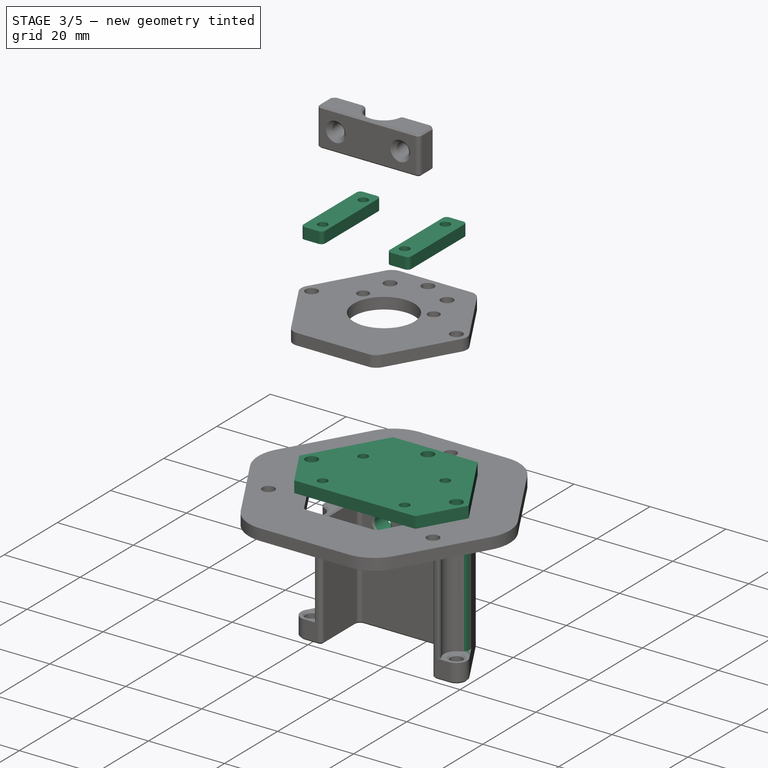
[diagram: stage 3 of 5 — iso view after this stage's code; geometry added in this stage tinted green]
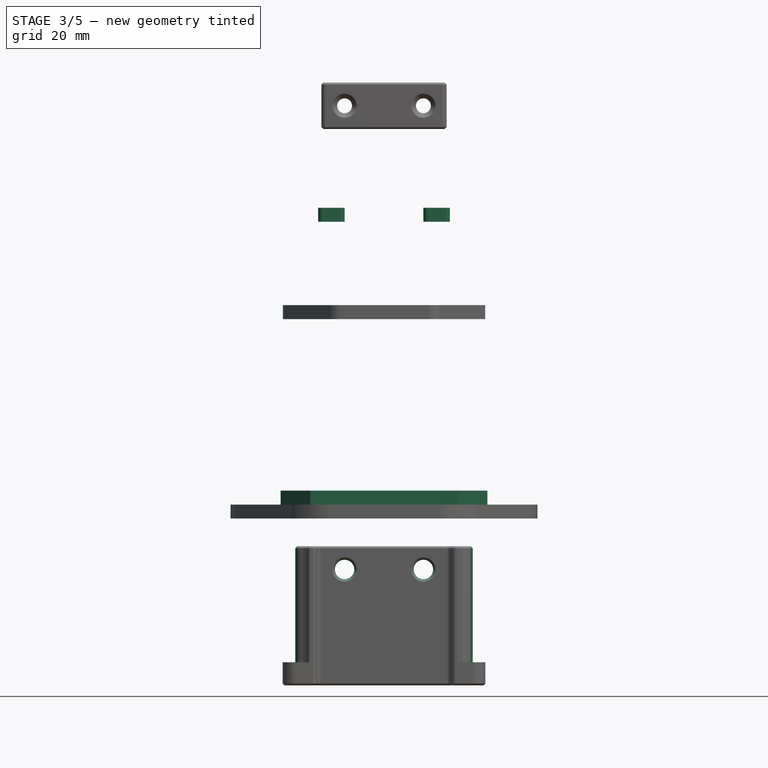
[diagram: stage 3 of 5 — front view after this stage's code; geometry added in this stage tinted green]
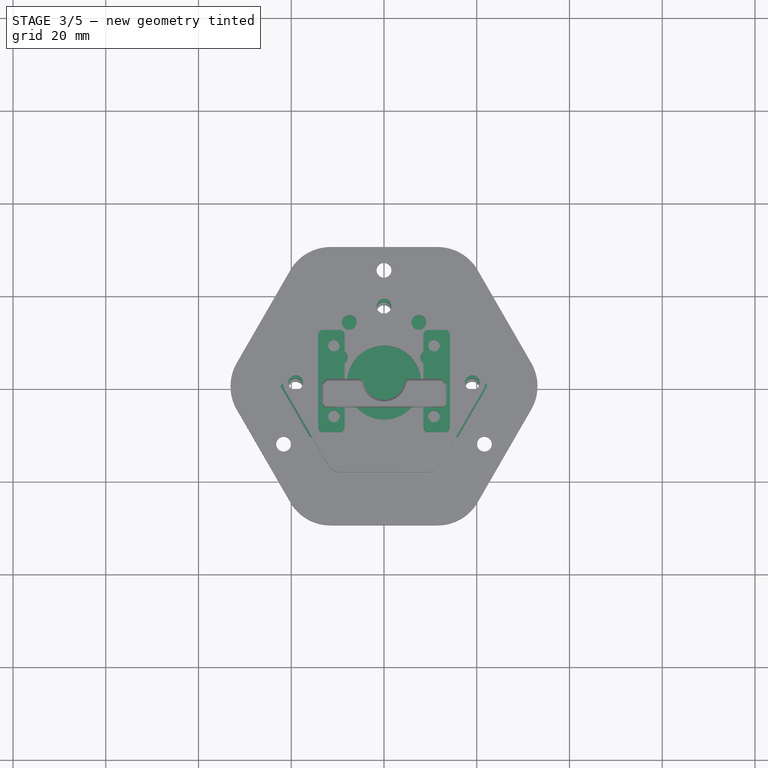
[diagram: stage 3 of 5 — top view after this stage's code; geometry added in this stage tinted green]
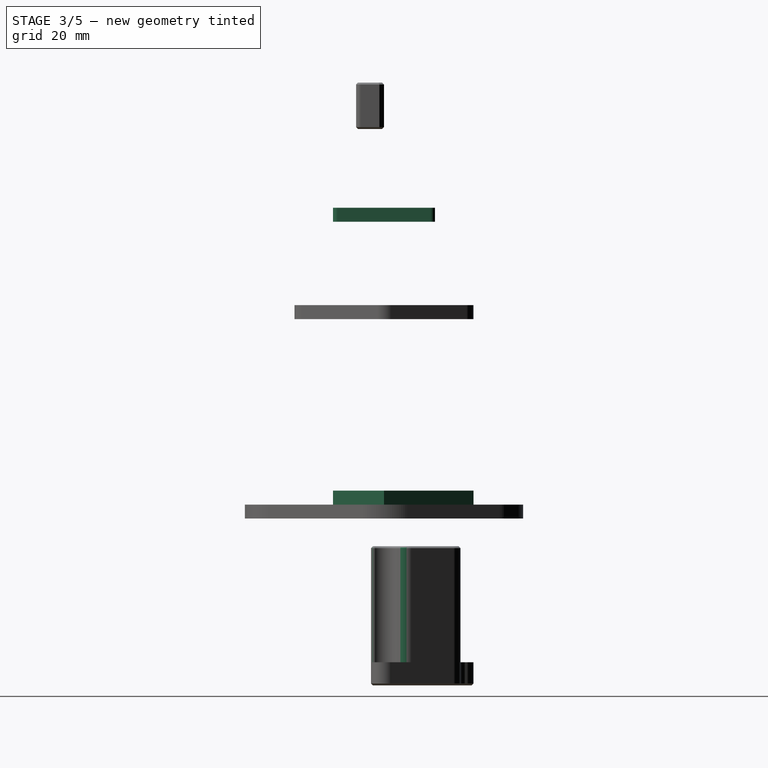
[diagram: stage 3 of 5 — right view after this stage's code; geometry added in this stage tinted green]
FEATURE [App::DocumentObjectGroup] Group  label="Visserie"
  ClaimAllChildren = true
  ExportMode = 1
  Group = -> [Standoff,Standoff001,Screw003,Screw004,Screw005,Screw006,Screw007,Screw008,Standoff002,Standoff003,Standoff004]
  TreeRank = 77
  _GroupVersion = 1
FEATURE [Part::SubShapeBinder] Import002  label="Import002(Fillet003)"
  BindCopyOnChange = 0
  BindMode = 0
  ClaimChildren = false
  Context = -> <external ../robot_holonome.FCStd>#Part [Link039.Body003.Import002.]
  EdgeTolerance = 1e-06
  FillStyle = 0
  Fuse = false
  InvalidShape = false
  MakeFace = false
  MergeEdges = true
  OffsetFill = false
  OffsetIntersection = false
  OffsetJoinType = 0
  OffsetOpenResult = false
  Outline = false
  PartialLoad = false
  Relative = true
  SplitEdges = false
  Support = -> [Body002[Fillet003.]]
  TightBound = false
  TreeRank = 96
  ValidateShape = true
  _Version = 8
FEATURE [Sketcher::SketchObject] Sketch005
  ArcFitTolerance = 1e-06
  AttachmentSupport = -> [XY_Plane003]
  ExternalBSplineMaxDegree = 5
  ExternalBSplineTolerance = 0.0001
  ExternalGeometry = -> [Import002]
  FullyConstrained = true
  InternalTolerance = 1e-06
  InvalidShape = false
  MakeInternals = true
  MapMode = 5
  Support = -> [XY_Plane003]
  TreeRank = 94
  ValidateShape = true
  sketch-geometry (27):
    g0: LineSegment [constr] StartX=-22.2857 StartY=-4.0597e-12 StartZ=0 EndX=-11.1429 EndY=-19.3 EndZ=0
    g1: LineSegment [constr] StartX=-11.1429 StartY=-19.3 StartZ=0 EndX=11.1429 EndY=-19.3 EndZ=0
    g2: LineSegment [constr] StartX=11.1429 StartY=-19.3 StartZ=0 EndX=22.2857 EndY=1.47899e-11 EndZ=0
    g3: LineSegment StartX=22.2857 StartY=1.47906e-11 StartZ=0 EndX=11.1429 EndY=19.3 EndZ=0
    g4: LineSegment StartX=11.1429 StartY=19.3 StartZ=0 EndX=-11.1429 EndY=19.3 EndZ=0
    g5: LineSegment StartX=-11.1429 StartY=19.3 StartZ=0 EndX=-22.2857 EndY=-4.0608e-12 EndZ=0
    g6: Circle [constr] CenterX=-4.848e-13 CenterY=1.455e-12 CenterZ=0 NormalX=0 NormalY=0 NormalZ=1 AngleXU=0 Radius=22.2857
    g7: LineSegment StartX=-15.9349 StartY=-11 StartZ=0 EndX=15.9349 EndY=-11 EndZ=0
    g8: LineSegment StartX=-15.9349 StartY=-11 StartZ=0 EndX=-22.2857 EndY=-4.059e-12 EndZ=0
    g9: LineSegment StartX=15.9349 StartY=-11 StartZ=0 EndX=22.2857 EndY=1.47899e-11 EndZ=0
    g10: Circle CenterX=-1.1265e-12 CenterY=16.5 CenterZ=0 NormalX=0 NormalY=0 NormalZ=1 AngleXU=0 Radius=1.6
    g11: Circle CenterX=-19.0526 CenterY=1.233e-12 CenterZ=0 NormalX=0 NormalY=0 NormalZ=1 AngleXU=0 Radius=1.6
    g12: Circle CenterX=19.0526 CenterY=-3.5725e-12 CenterZ=0 NormalX=0 NormalY=0 NormalZ=1 AngleXU=0 Radius=1.6
    g13: LineSegment [constr] StartX=-13.335 StartY=-10.16 StartZ=0 EndX=-13.335 EndY=10.16 EndZ=0
    g14: LineSegment [constr] StartX=-13.335 StartY=10.16 StartZ=0 EndX=13.335 EndY=10.16 EndZ=0
    g15: LineSegment [constr] StartX=13.335 StartY=10.16 StartZ=0 EndX=13.335 EndY=-10.16 EndZ=0
    g16: LineSegment [constr] StartX=13.335 StartY=-10.16 StartZ=0 EndX=-13.335 EndY=-10.16 EndZ=0
    g17: GeomPoint [constr] X=-4.848e-13 Y=1.455e-12 Z=0
    g18: LineSegment [constr] StartX=-10.795 StartY=-7.62 StartZ=0 EndX=-10.795 EndY=7.62 EndZ=0
    g19: LineSegment [constr] StartX=-10.795 StartY=7.62 StartZ=0 EndX=10.795 EndY=7.62 EndZ=0
    g20: LineSegment [constr] StartX=10.795 StartY=7.62 StartZ=0 EndX=10.795 EndY=-7.62 EndZ=0
    g21: LineSegment [constr] StartX=10.795 StartY=-7.62 StartZ=0 EndX=-10.795 EndY=-7.62 EndZ=0
    g22: GeomPoint [constr] X=-4.848e-13 Y=1.455e-12 Z=0
    g23: Circle CenterX=-10.795 CenterY=7.62 CenterZ=0 NormalX=0 NormalY=0 NormalZ=1 AngleXU=0 Radius=1.25
    g24: Circle CenterX=-10.795 CenterY=-7.62 CenterZ=0 NormalX=0 NormalY=0 NormalZ=1 AngleXU=0 Radius=1.25
    g25: Circle CenterX=10.795 CenterY=-7.62 CenterZ=0 NormalX=0 NormalY=0 NormalZ=1 AngleXU=0 Radius=1.25
    g26: Circle CenterX=10.795 CenterY=7.62 CenterZ=0 NormalX=0 NormalY=0 NormalZ=1 AngleXU=0 Radius=1.25
  constraints (62):
    c: Coincident(g0,g1)
    c: Coincident(g1,g2)
    c: Coincident(g2,g3)
    c: Coincident(g3,g4)
    c: Coincident(g4,g5)
    c: Coincident(g5,g0)
    c: Equal(g0, g1-g5) x5
    c: PointOnObject(g0,g6)
    c: PointOnObject(g1,g6)
    c: PointOnObject(g2,g6)
    c: PointOnObject(g3,g6)
    c: PointOnObject(g4,g6)
    c: PointOnObject(g5,g6)
    c: Coincident(g6,g-1)
    c: PointOnObject(g5,g-1)
    c: DistanceY(g6,g3) = 19.3
    c: PointOnObject(g7,g0)
    c: PointOnObject(g7,g2)
    c: Horizontal(g7)
    c: DistanceY(g7,g6) = 11
    c: Coincident(g8,g7)
    c: Coincident(g8,g5)
    c: Coincident(g9,g7)
    c: Coincident(g9,g3)
    c: Coincident(g10,g-4)
    c: Coincident(g11,g-3)
    c: Coincident(g12,g-5)
    c: Equal(g12,g11)
    c: Equal(g12,g10)
    c: Diameter(g12) = 3.2
    c: Coincident(g13,g14)
    c: Coincident(g14,g15)
    c: Coincident(g15,g16)
    c: Coincident(g16,g13)
    c: Horizontal(g14)
    c: Horizontal(g16)
    c: Vertical(g13)
    c: Vertical(g15)
    c: Symmetric(g14,g13,g17)
    c: Coincident(g17,g6)
    c: Coincident(g18,g19)
    c: Coincident(g19,g20)
    c: Coincident(g20,g21)
    c: Coincident(g21,g18)
    c: Horizontal(g19)
    c: Horizontal(g21)
    c: Vertical(g18)
    c: Vertical(g20)
    c: Symmetric(g19,g18,g22)
    c: Coincident(g22,g6)
    c: Coincident(g23,g18)
    c: Coincident(g24,g18)
    c: Coincident(g25,g20)
    c: Coincident(g26,g19)
    c: Equal(g26,g25)
    c: Equal(g26,g24)
    c: Equal(g26,g23)
    c: Diameter(g26) = 2.5
    c: DistanceX(g19,g19) = 21.59
    c: DistanceY(g18,g18) = 15.24
    c: DistanceX(g14,g14) = 26.67
    c: DistanceY(g13,g13) = 20.32
FEATURE [PartDesign::Pad] Pad004
  AddSubType = 0
  AlongSketchNormal = false
  AutoTaperInnerAngle = true
  CheckUpToFaceLimits = true
  ClaimChildren = false
  Direction = (0,0,1)
  Fit = 0
  FitJoin = 0
  InnerFit = 0
  InnerFitJoin = 0
  InvalidShape = false
  Length = 3
  Length2 = 100
  Linearize = true
  NewSolid = false
  Profile = -> Sketch005
  Refine = true
  Suppress = false
  TaperInnerAngle = 0
  TaperInnerAngleRev = 0
  TreeRank = 95
  Type = 0
  ValidateShape = true
  _ProfileBasedVersion = 1
FEATURE [PartDesign::Body] Body003  label="FixingBNO055"
  AutoGroupSolids = false
  ClaimAllChildren = false
  ExportMode = 0
  Group = -> [Sketch005,Import002,Pad004,Fillet004]
  InvalidShape = false
  Origin = -> Origin003
  Placement = pos=(0,0,58) rot=(0,0,1;0rad)
  SingleSolid = true
  Tip = -> Fillet004
  TreeRank = 93
  ValidateShape = true
  _ExportChildren = -> [Import002,Pad004,Fillet004]
  _GroupVersion = 1
FEATURE [TechDraw::DrawSVGTemplate] Template001
  Height = 210
  Orientation = 1
  TreeRank = 102
  Width = 297
FEATURE [Part::SubShapeBinder] Import003  label="Import003(Fillet004)"
  BindCopyOnChange = 0
  BindMode = 0
  ClaimChildren = false
  Context = -> <external ../robot_holonome.FCStd>#Part [Link039.Body004.Import003.]
  EdgeTolerance = 1e-06
  FillStyle = 0
  Fuse = false
  InvalidShape = false
  MakeFace = false
  MergeEdges = true
  OffsetFill = false
  OffsetIntersection = false
  OffsetJoinType = 0
  OffsetOpenResult = false
  Outline = false
  PartialLoad = false
  Relative = true
  SplitEdges = false
  Support = -> [Body003[Fillet004.]]
  TightBound = false
  TreeRank = 123
  ValidateShape = true
  _Version = 8
FEATURE [Sketcher::SketchObject] Sketch006
  ArcFitTolerance = 1e-06
  AttachmentSupport = -> [Import003]
  ExternalBSplineMaxDegree = 5
  ExternalBSplineTolerance = 0.0001
  ExternalGeometry = -> [Import003]
  FullyConstrained = true
  InternalTolerance = 1e-06
  InvalidShape = false
  MakeInternals = true
  MapMode = 5
  Placement = pos=(0,0,61) rot=(0,0,1;0rad)
  Support = -> [Import003]
  TreeRank = 124
  ValidateShape = true
  sketch-geometry (11):
    g0: LineSegment StartX=-8.5 StartY=-11 StartZ=0 EndX=-8.5 EndY=11 EndZ=0
    g1: LineSegment [constr] StartX=-8.5 StartY=11 StartZ=0 EndX=8.5 EndY=11 EndZ=0
    g2: LineSegment StartX=8.5 StartY=11 StartZ=0 EndX=8.5 EndY=-11 EndZ=0
    g3: LineSegment [constr] StartX=8.5 StartY=-11 StartZ=0 EndX=-8.5 EndY=-11 EndZ=0
    g4: GeomPoint [constr] X=2.4985e-12 Y=-8.058e-13 Z=0
    g5: LineSegment StartX=-8.5 StartY=-11 StartZ=0 EndX=-14.2028 EndY=-11 EndZ=0
    g6: LineSegment StartX=-14.2028 StartY=-11 StartZ=0 EndX=-14.2028 EndY=11 EndZ=0
    g7: LineSegment StartX=14.2028 StartY=11 StartZ=0 EndX=14.2028 EndY=-11 EndZ=0
    g8: LineSegment StartX=14.2028 StartY=-11 StartZ=0 EndX=8.5 EndY=-11 EndZ=0
    g9: LineSegment StartX=-14.2028 StartY=11 StartZ=0 EndX=-8.5 EndY=11 EndZ=0
    g10: LineSegment StartX=8.5 StartY=11 StartZ=0 EndX=14.2028 EndY=11 EndZ=0
  constraints (26):
    c: Coincident(g0,g1)
    c: Coincident(g1,g2)
    c: Coincident(g2,g3)
    c: Coincident(g3,g0)
    c: Horizontal(g1)
    c: Horizontal(g3)
    c: Vertical(g0)
    c: Vertical(g2)
    c: Symmetric(g1,g0,g4)
    c: Coincident(g4,g-1)
    c: PointOnObject(g0,g-7)
    c: DistanceX(g1,g1) = 17
    c: Coincident(g5,g0)
    c: Coincident(g5,g-7)
    c: Coincident(g6,g5)
    c: Vertical(g6)
    c: Coincident(g7,g-7)
    c: Vertical(g7)
    c: Coincident(g8,g7)
    c: Coincident(g8,g2)
    c: Coincident(g9,g6)
    c: Coincident(g9,g0)
    c: Coincident(g10,g1)
    c: Coincident(g10,g7)
    c: Horizontal(g10)
    c: Horizontal(g9)
FEATURE [PartDesign::Pad] Pad005
  AddSubType = 0
  AlongSketchNormal = false
  AutoTaperInnerAngle = true
  CheckUpToFaceLimits = true
  ClaimChildren = false
  Direction = (0,0,1)
  Fit = 0
  FitJoin = 0
  InnerFit = 0
  InnerFitJoin = 0
  InvalidShape = false
  Length = 3
  Length2 = 100
  Linearize = true
  NewSolid = false
  Profile = -> Sketch006
  Refine = true
  Suppress = false
  TaperInnerAngle = 0
  TaperInnerAngleRev = 0
  TreeRank = 125
  Type = 0
  ValidateShape = true
  _ProfileBasedVersion = 1
FEATURE [PartDesign::Fillet] Fillet005
  AddSubType = 0
  Base = -> Pad005 [Edge23,Edge20,Edge1,Edge2,Edge8,Edge5,Edge26,Edge19]
  BaseFeature = -> Pad005
  InvalidShape = false
  NewSolid = false
  Radius = 1
  Refine = true
  SupportTransform = false
  Suppress = false
  TreeRank = 126
  UseAllEdges = false
  ValidateShape = true
FEATURE [PartDesign::Fillet] Fillet009
  AddSubType = 0
  Base = -> Pocket002 [Edge27,Edge67]
  BaseFeature = -> Pocket002
  InvalidShape = false
  NewSolid = false
  Radius = 2
  Refine = true
  SupportTransform = false
  Suppress = false
  TreeRank = 151
  UseAllEdges = false
  ValidateShape = true
FEATURE [PartDesign::Fillet] Fillet010
  AddSubType = 0
  Base = -> Fillet009 [Edge89,Edge62]
  BaseFeature = -> Fillet009
  InvalidShape = false
  NewSolid = false
  Radius = 0.6
  Refine = true
  SupportTransform = false
  Suppress = false
  TreeRank = 152
  UseAllEdges = false
  ValidateShape = true
FEATURE [PartDesign::Fillet] Fillet011
  AddSubType = 0
  Base = -> Fillet010 [Edge55,Edge67,Edge62,Edge59]
  BaseFeature = -> Fillet010
  InvalidShape = false
  NewSolid = false
  Radius = 1.4
  Refine = true
  SupportTransform = false
  Suppress = false
  TreeRank = 153
  UseAllEdges = false
  ValidateShape = true
FEATURE [Sketcher::SketchObject] Sketch010
  ArcFitTolerance = 1e-06
  AttachmentSupport = -> [XZ_Plane005]
  ExternalBSplineMaxDegree = 5
  ExternalBSplineTolerance = 0.0001
  ExternalGeometry = -> [Fillet011]
  FullyConstrained = true
  InternalTolerance = 1e-06
  InvalidShape = false
  MakeInternals = true
  MapMode = 5
  Placement = pos=(0,0,0) rot=(1,0,0;1.5708rad)
  Support = -> [XZ_Plane005]
  TreeRank = 154
  ValidateShape = true
  sketch-geometry (2):
    g0: Circle CenterX=-8.5 CenterY=-14 CenterZ=0 NormalX=0 NormalY=0 NormalZ=1 AngleXU=0 Radius=2.1
    g1: Circle CenterX=8.5 CenterY=-14 CenterZ=0 NormalX=0 NormalY=0 NormalZ=1 AngleXU=0 Radius=2.1
  constraints (5):
    c: Symmetric(g0,g1,g-2)
    c: Equal(g1,g0)
    c: Diameter(g1) = 4.2
    c: DistanceX(g0,g1) = 17
    c: DistanceY(g1,g-3) = 5
FEATURE [PartDesign::Pocket] Pocket003
  AddSubType = 1
  AutoTaperInnerAngle = true
  BaseFeature = -> Fillet011
  CheckUpToFaceLimits = true
  ClaimChildren = false
  Direction = (0,1,2e-16)
  Fit = 0
  FitJoin = 0
  InnerFit = 0
  InnerFitJoin = 0
  InvalidShape = false
  Length = 5
  Length2 = 100
  Linearize = true
  NewSolid = false
  Profile = -> Sketch010
  Refine = true
  Suppress = false
  TaperInnerAngle = 0
  TaperInnerAngleRev = 0
  TreeRank = 155
  Type = 1
  ValidateShape = true
  _ProfileBasedVersion = 1
  _Version = 1
FEATURE [PartDesign::Chamfer] Chamfer002
  AddSubType = 0
  Angle = 45
  Base = -> Pocket003 [Edge94,Edge93,Edge75,Edge36]
  BaseFeature = -> Pocket003
  ChamferType = 0
  FlipDirection = false
  InvalidShape = false
  NewSolid = false
  Refine = true
  Size = 0.5
  Size2 = 1
  SupportTransform = false
  Suppress = false
  TreeRank = 156
  UseAllEdges = false
  ValidateShape = true
FEATURE [PartDesign::Chamfer] Chamfer003
  AddSubType = 0
  Angle = 45
  Base = -> Chamfer002 [Face5,Edge130,Edge128,Edge56,Face9]
  BaseFeature = -> Chamfer002
  ChamferType = 0
  FlipDirection = false
  InvalidShape = false
  NewSolid = false
  Refine = true
  Size = 0.4
  Size2 = 1
  SupportTransform = false
  Suppress = false
  TreeRank = 157
  UseAllEdges = false
  ValidateShape = true
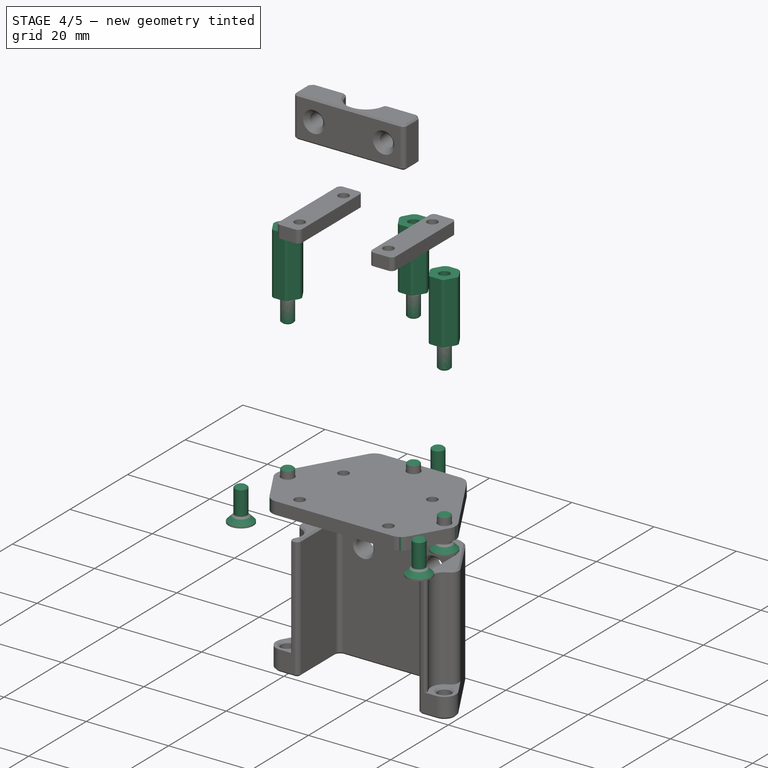
[diagram: stage 4 of 5 — iso view after this stage's code; geometry added in this stage tinted green]
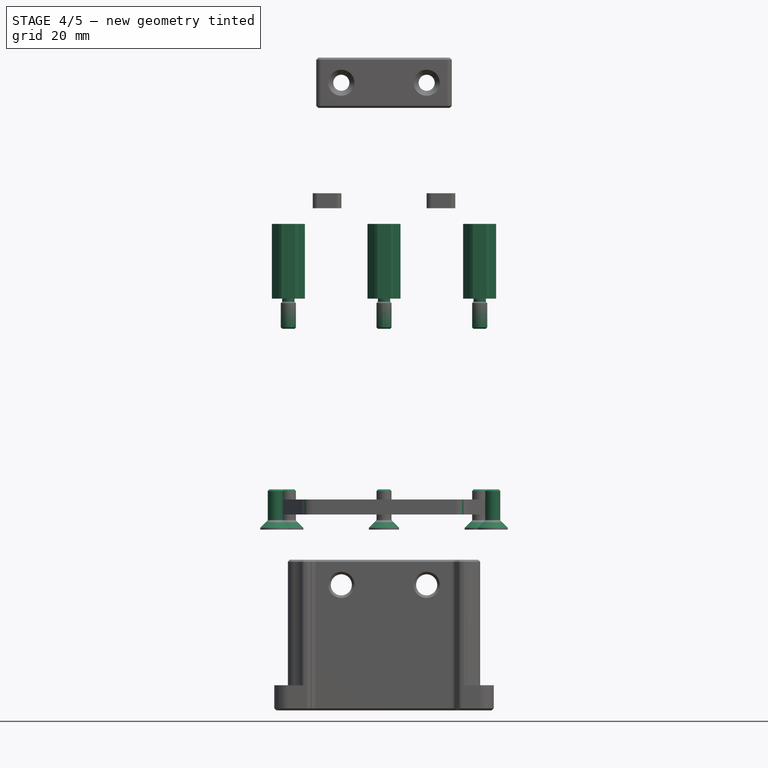
[diagram: stage 4 of 5 — front view after this stage's code; geometry added in this stage tinted green]
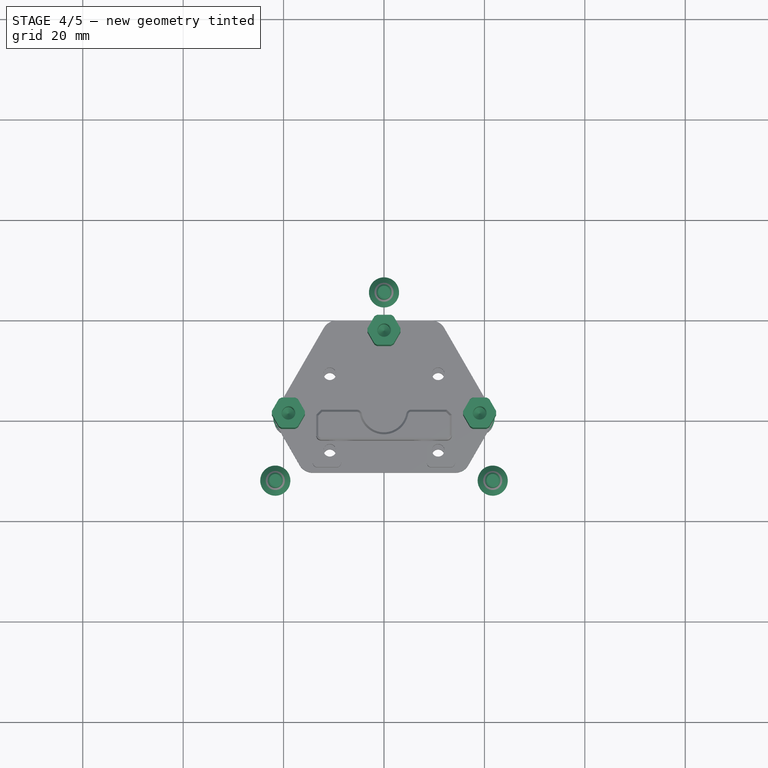
[diagram: stage 4 of 5 — top view after this stage's code; geometry added in this stage tinted green]
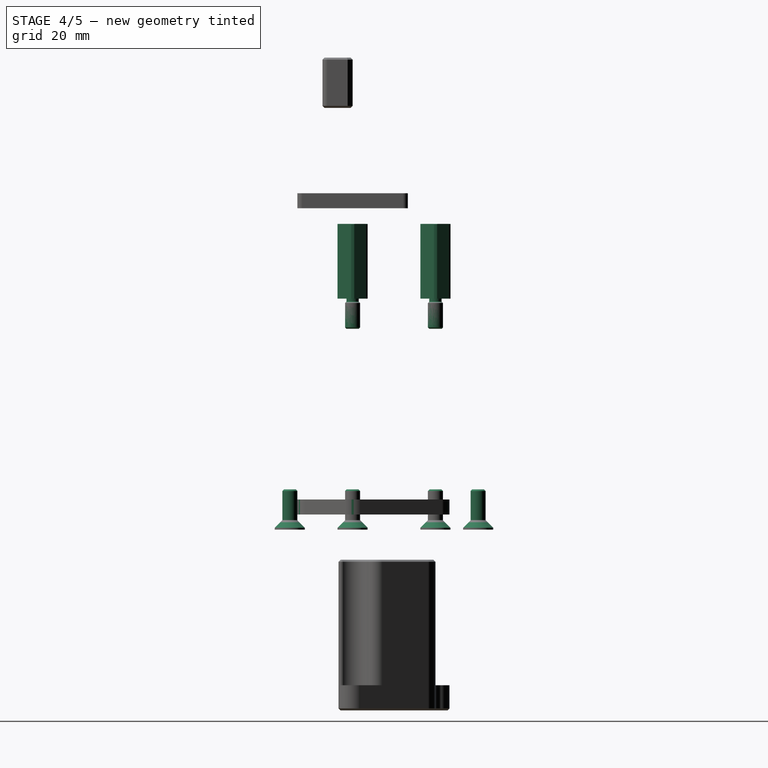
[diagram: stage 4 of 5 — right view after this stage's code; geometry added in this stage tinted green]
FEATURE [Part::FeaturePython] Screw003  label="M3x8-Screw"  # Fasteners workbench fastener (typed FeaturePython)
  InvalidShape = false
  Placement = pos=(-19.0526,1.233e-12,-3) rot=(-1,0,0;3.14159rad)
  TreeRank = 71
  ValidateShape = true
  baseObject = -> Body001 [Edge104]
  diameter = 3
  invert = false
  leftHanded = false
  length = 0
  lengthCustom = 8
  matchOuter = false
  offset = 0
  thread = false
  type = 28
FEATURE [Part::FeaturePython] Screw004  label="M3x8-Screw039"  # Fasteners workbench fastener (typed FeaturePython)
  InvalidShape = false
  Placement = pos=(-21.6506,-12.5,-3) rot=(-1,0,0;3.14159rad)
  TreeRank = 72
  ValidateShape = true
  baseObject = -> Body001 [Edge110]
  diameter = 3
  invert = false
  leftHanded = false
  length = 0
  lengthCustom = 8
  matchOuter = false
  offset = 0
  thread = false
  type = 28
FEATURE [Part::FeaturePython] Screw005  label="M3x8-Screw040"  # Fasteners workbench fastener (typed FeaturePython)
  InvalidShape = false
  Placement = pos=(-1.1265e-12,16.5,-3) rot=(-1,0,0;3.14159rad)
  TreeRank = 73
  ValidateShape = true
  baseObject = -> Body001 [Edge108]
  diameter = 3
  invert = false
  leftHanded = false
  length = 0
  lengthCustom = 8
  matchOuter = false
  offset = 0
  thread = false
  type = 28
FEATURE [Part::FeaturePython] Screw006  label="M3x8-Screw041"  # Fasteners workbench fastener (typed FeaturePython)
  InvalidShape = false
  Placement = pos=(4.3e-15,25,-3) rot=(-1,0,0;3.14159rad)
  TreeRank = 74
  ValidateShape = true
  baseObject = -> Body001 [Edge114]
  diameter = 3
  invert = false
  leftHanded = false
  length = 0
  lengthCustom = 8
  matchOuter = false
  offset = 0
  thread = false
  type = 28
FEATURE [Part::FeaturePython] Screw007  label="M3x8-Screw042"  # Fasteners workbench fastener (typed FeaturePython)
  InvalidShape = false
  Placement = pos=(19.0526,-3.5725e-12,-3) rot=(-1,0,0;3.14159rad)
  TreeRank = 75
  ValidateShape = true
  baseObject = -> Body001 [Edge106]
  diameter = 3
  invert = false
  leftHanded = false
  length = 0
  lengthCustom = 8
  matchOuter = false
  offset = 0
  thread = false
  type = 28
FEATURE [Part::FeaturePython] Screw008  label="M3x8-Screw043"  # Fasteners workbench fastener (typed FeaturePython)
  InvalidShape = false
  Placement = pos=(21.6506,-12.5,-3) rot=(-1,0,0;3.14159rad)
  TreeRank = 76
  ValidateShape = true
  baseObject = -> Body001 [Edge112]
  diameter = 3
  invert = false
  leftHanded = false
  length = 0
  lengthCustom = 8
  matchOuter = false
  offset = 0
  thread = false
  type = 28
FEATURE [Part::FeaturePython] Standoff002  label="M3x15xx6-Standoff"  # Fasteners workbench fastener (typed FeaturePython)
  InvalidShape = false
  Placement = pos=(-19.0526,1.233e-12,43) rot=(0,0,1;0rad)
  TreeRank = 81
  ValidateShape = true
  baseObject = -> Body002 [Edge38]
  diameter = 2
  invert = false
  leftHanded = false
  length = 3
  lengthCustom = 15
  matchOuter = false
  offset = 0
  screwLength = 6
  thread = false
  type = 0
  width = 2
FEATURE [Part::FeaturePython] Standoff003  label="M3x15xx6-Standoff013"  # Fasteners workbench fastener (typed FeaturePython)
  InvalidShape = false
  Placement = pos=(-1.1265e-12,16.5,43) rot=(0,0,1;0rad)
  TreeRank = 82
  ValidateShape = true
  baseObject = -> Body002 [Edge39]
  diameter = 2
  invert = false
  leftHanded = false
  length = 3
  lengthCustom = 15
  matchOuter = false
  offset = 0
  screwLength = 6
  thread = false
  type = 0
  width = 2
FEATURE [Part::FeaturePython] Standoff004  label="M3x15xx6-Standoff014"  # Fasteners workbench fastener (typed FeaturePython)
  InvalidShape = false
  Placement = pos=(19.0526,-3.5725e-12,43) rot=(0,0,1;0rad)
  TreeRank = 83
  ValidateShape = true
  baseObject = -> Body002 [Edge40]
  diameter = 2
  invert = false
  leftHanded = false
  length = 3
  lengthCustom = 15
  matchOuter = false
  offset = 0
  screwLength = 6
  thread = false
  type = 0
  width = 2
FEATURE [PartDesign::Fillet] Fillet004
  AddSubType = 0
  Base = -> Pad004 [Edge14,Edge1,Edge8,Edge11,Edge5,Edge2]
  BaseFeature = -> Pad004
  InvalidShape = false
  NewSolid = false
  Radius = 3
  Refine = true
  SupportTransform = false
  Suppress = false
  TreeRank = 97
  UseAllEdges = false
  ValidateShape = true
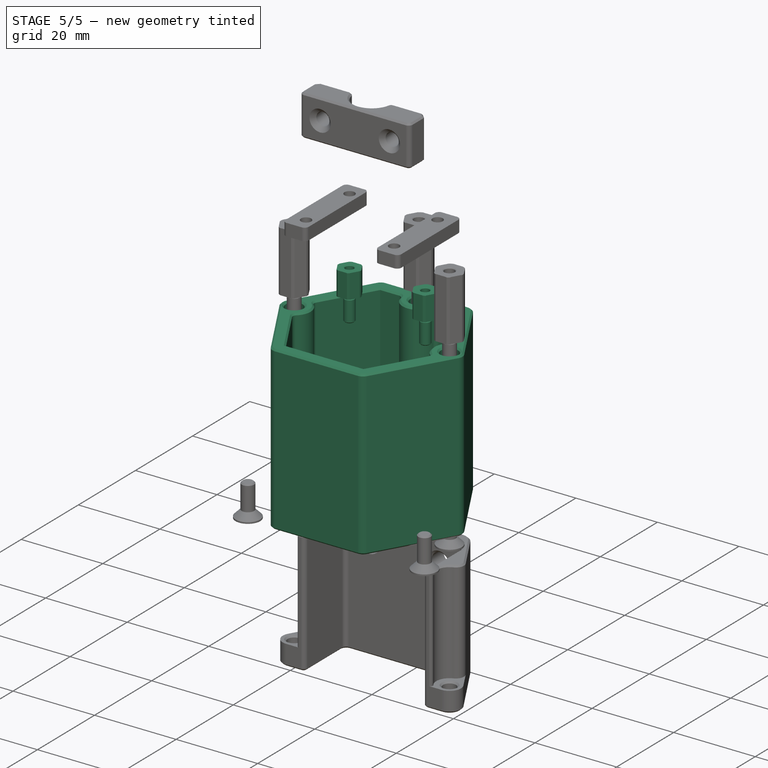
[diagram: stage 5 of 5 — iso view after this stage's code; geometry added in this stage tinted green]
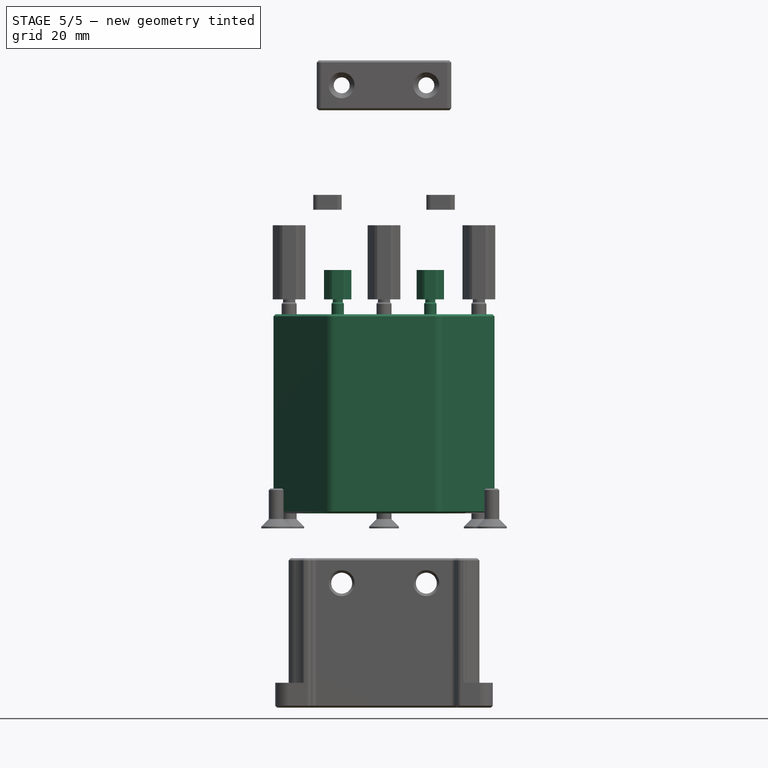
[diagram: stage 5 of 5 — front view after this stage's code; geometry added in this stage tinted green]
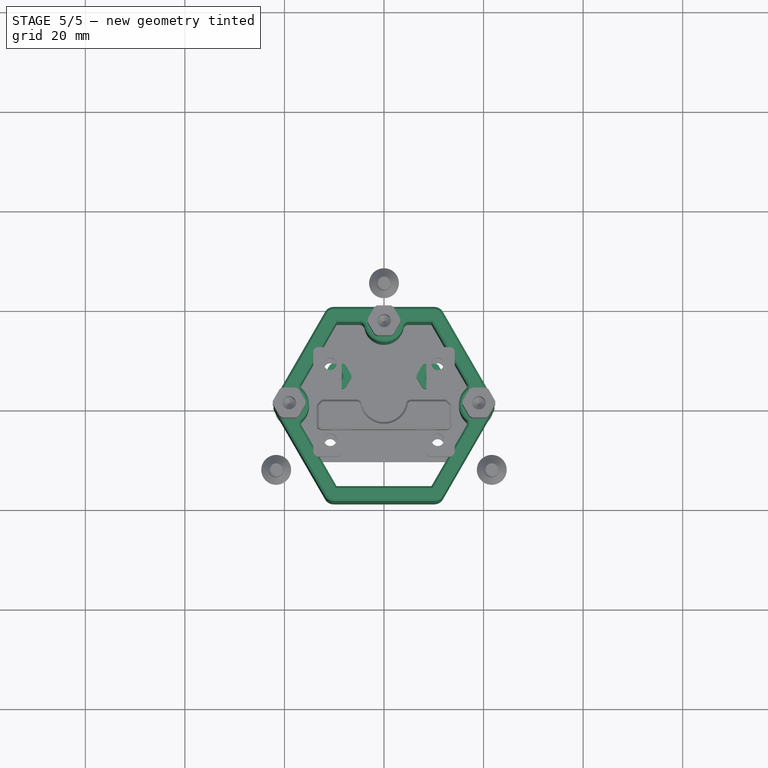
[diagram: stage 5 of 5 — top view after this stage's code; geometry added in this stage tinted green]
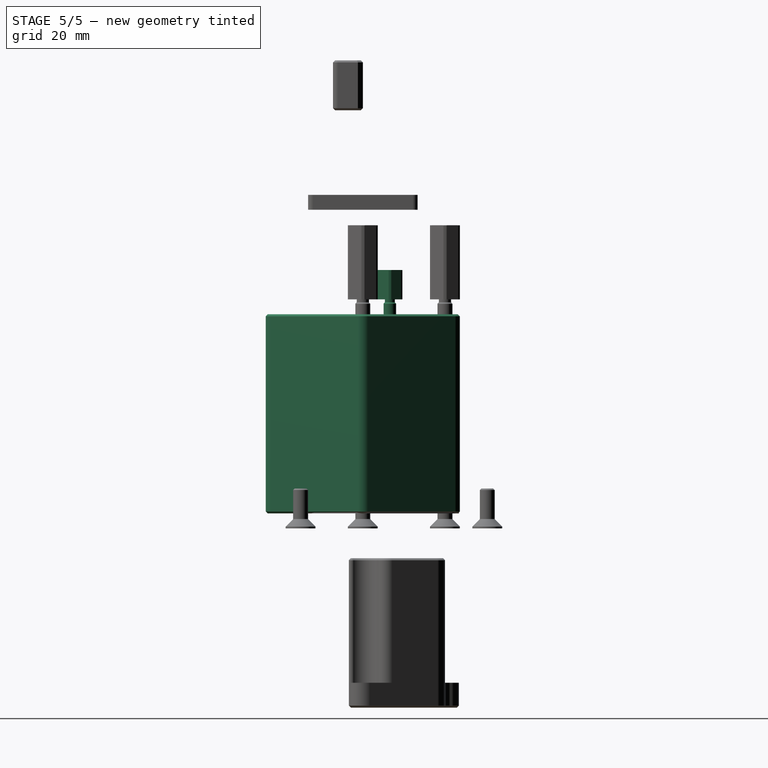
[diagram: stage 5 of 5 — right view after this stage's code; geometry added in this stage tinted green]
FEATURE [Sketcher::SketchObject] Sketch
  ArcFitTolerance = 1e-06
  AttachmentSupport = -> [XY_Plane]
  ExternalBSplineMaxDegree = 5
  ExternalBSplineTolerance = 0.0001
  FullyConstrained = true
  InternalTolerance = 1e-06
  InvalidShape = false
  MakeInternals = true
  MapMode = 5
  Support = -> [XY_Plane]
  TreeRank = 11
  ValidateShape = true
  sketch-geometry (31):
    g0: LineSegment StartX=-22.5167 StartY=4.005e-13 StartZ=0 EndX=-11.2583 EndY=-19.5 EndZ=0
    g1: LineSegment StartX=-11.2583 StartY=-19.5 StartZ=0 EndX=11.2583 EndY=-19.5 EndZ=0
    g2: LineSegment StartX=11.2583 StartY=-19.5 StartZ=0 EndX=22.5167 EndY=1.7231e-12 EndZ=0
    g3: LineSegment StartX=22.5167 StartY=1.7228e-12 StartZ=0 EndX=11.2583 EndY=19.5 EndZ=0
    g4: LineSegment StartX=11.2583 StartY=19.5 StartZ=0 EndX=-11.2583 EndY=19.5 EndZ=0
    g5: LineSegment StartX=-11.2583 StartY=19.5 StartZ=0 EndX=-22.5167 EndY=4.015e-13 EndZ=0
    g6: Circle [constr] CenterX=-3.0503e-12 CenterY=3.024e-13 CenterZ=0 NormalX=0 NormalY=0 NormalZ=1 AngleXU=0 Radius=22.5167
    g7: LineSegment [constr] StartX=-19.0526 StartY=1.233e-12 StartZ=0 EndX=-9.52628 EndY=-16.5 EndZ=0
    g8: LineSegment StartX=-9.52628 StartY=-16.5 StartZ=0 EndX=9.52628 EndY=-16.5 EndZ=0
    g9: LineSegment [constr] StartX=9.52628 StartY=-16.5 StartZ=0 EndX=19.0526 EndY=-3.574e-12 EndZ=0
    g10: LineSegment [constr] StartX=19.0526 StartY=-3.5725e-12 StartZ=0 EndX=9.52628 EndY=16.5 EndZ=0
    g11: LineSegment [constr] StartX=9.52628 StartY=16.5 StartZ=0 EndX=-9.52628 EndY=16.5 EndZ=0
    g12: LineSegment [constr] StartX=-9.52628 StartY=16.5 StartZ=0 EndX=-19.0526 EndY=1.2328e-12 EndZ=0
    g13: Circle [constr] CenterX=-3.0503e-12 CenterY=3.024e-13 CenterZ=0 NormalX=0 NormalY=0 NormalZ=1 AngleXU=0 Radius=19.0526
    g14: LineSegment [constr] StartX=12 StartY=-15.87 StartZ=0 EndX=12 EndY=8.13 EndZ=0
    g15: LineSegment [constr] StartX=12 StartY=8.13 StartZ=0 EndX=-12 EndY=8.13 EndZ=0
    g16: LineSegment [constr] StartX=-12 StartY=8.13 StartZ=0 EndX=-12 EndY=-15.87 EndZ=0
    g17: LineSegment [constr] StartX=-12 StartY=-15.87 StartZ=0 EndX=12 EndY=-15.87 EndZ=0
    g18: GeomPoint [constr] X=2.792e-13 Y=-3.87 Z=0
    g19: ArcOfCircle CenterX=-19.0526 CenterY=1.233e-12 CenterZ=0 NormalX=0 NormalY=0 NormalZ=1 AngleXU=0 Radius=4 StartAngle=5.23599 EndAngle=7.33038
    g20: ArcOfCircle CenterX=19.0526 CenterY=-3.5725e-12 CenterZ=0 NormalX=0 NormalY=0 NormalZ=1 AngleXU=0 Radius=4 StartAngle=2.0944 EndAngle=4.18879
    g21: ArcOfCircle CenterX=-1.1265e-12 CenterY=16.5 CenterZ=0 NormalX=0 NormalY=0 NormalZ=1 AngleXU=0 Radius=4 StartAngle=3.14159 EndAngle=6.28319
    g22: LineSegment StartX=-17.0526 StartY=3.4641 StartZ=0 EndX=-9.52628 EndY=16.5 EndZ=0
    g23: LineSegment StartX=-9.52628 StartY=16.5 StartZ=0 EndX=-4 EndY=16.5 EndZ=0
    g24: LineSegment StartX=4 StartY=16.5 StartZ=0 EndX=9.52628 EndY=16.5 EndZ=0
    g25: LineSegment StartX=9.52628 StartY=16.5 StartZ=0 EndX=17.0526 EndY=3.4641 EndZ=0
    g26: LineSegment StartX=17.0526 StartY=-3.4641 StartZ=0 EndX=9.52628 EndY=-16.5 EndZ=0
    g27: LineSegment StartX=-9.52628 StartY=-16.5 StartZ=0 EndX=-17.0526 EndY=-3.4641 EndZ=0
    g28: Circle CenterX=-19.0526 CenterY=1.233e-12 CenterZ=0 NormalX=0 NormalY=0 NormalZ=1 AngleXU=0 Radius=2.1
    g29: Circle CenterX=19.0526 CenterY=-3.5725e-12 CenterZ=0 NormalX=0 NormalY=0 NormalZ=1 AngleXU=0 Radius=2.1
    g30: Circle CenterX=-1.1265e-12 CenterY=16.5 CenterZ=0 NormalX=0 NormalY=0 NormalZ=1 AngleXU=0 Radius=2.1
  constraints (76):
    c: Coincident(g0,g1)
    c: Coincident(g1,g2)
    c: Coincident(g2,g3)
    c: Coincident(g3,g4)
    c: Coincident(g4,g5)
    c: Coincident(g5,g0)
    c: Equal(g0, g1-g5) x5
    c: PointOnObject(g0,g6)
    c: PointOnObject(g1,g6)
    c: PointOnObject(g2,g6)
    c: PointOnObject(g3,g6)
    c: PointOnObject(g4,g6)
    c: PointOnObject(g5,g6)
    c: Coincident(g6,g-1)
    c: PointOnObject(g5,g-1)
    c: DistanceY(g6,g3) = 19.5
    c: Coincident(g7,g8)
    c: Coincident(g8,g9)
    c: Coincident(g9,g10)
    c: Coincident(g10,g11)
    c: Coincident(g11,g12)
    c: Coincident(g12,g7)
    c: Equal(g7, g8-g12) x5
    c: PointOnObject(g7,g13)
    c: PointOnObject(g8,g13)
    c: PointOnObject(g9,g13)
    c: PointOnObject(g10,g13)
    c: PointOnObject(g11,g13)
    c: PointOnObject(g12,g13)
    c: Coincident(g13,g6)
    c: PointOnObject(g12,g-1)
    c: Coincident(g14,g15)
    c: Coincident(g15,g16)
    c: Coincident(g16,g17)
    c: Coincident(g17,g14)
    c: Horizontal(g15)
    c: Horizontal(g17)
    c: Vertical(g14)
    c: Vertical(g16)
    c: Symmetric(g15,g14,g18)
    c: PointOnObject(g18,g-2)
    c: DistanceY(g6,g14) = 8.13
    c: DistanceY(g16,g16) = 24
    c: DistanceX(g15,g15) = 24
    c: Coincident(g19,g7)
    c: PointOnObject(g19,g12)
    c: PointOnObject(g19,g7)
    c: Coincident(g20,g9)
    c: PointOnObject(g20,g10)
    c: PointOnObject(g20,g9)
    c: PointOnObject(g21,g11)
    c: PointOnObject(g21,g11)
    c: PointOnObject(g21,g11)
    c: Equal(g19,g21)
    c: Equal(g19,g20)
    c: Radius(g19) = 4
    c: PointOnObject(g21,g-2)
    c: Coincident(g22,g19)
    c: Coincident(g22,g11)
    c: Coincident(g23,g22)
    c: Coincident(g23,g21)
    c: Coincident(g24,g21)
    c: Coincident(g24,g10)
    c: Coincident(g25,g24)
    c: Coincident(g25,g20)
    c: Coincident(g26,g20)
    c: Coincident(g26,g8)
    c: Coincident(g27,g8)
    c: Coincident(g27,g19)
    c: Coincident(g28,g19)
    c: Coincident(g29,g20)
    c: Coincident(g30,g21)
    c: Equal(g29,g28)
    c: Equal(g29,g30)
    c: Diameter(g29) = 4.2
    c: DistanceY(g24,g3) = 3
FEATURE [PartDesign::Pad] Pad
  AddSubType = 0
  AlongSketchNormal = false
  AutoTaperInnerAngle = true
  CheckUpToFaceLimits = true
  ClaimChildren = false
  Direction = (0,0,1)
  Fit = 0
  FitJoin = 0
  InnerFit = 0
  InnerFitJoin = 0
  InvalidShape = false
  Length = 40
  Length2 = 100
  Linearize = true
  NewSolid = false
  Profile = -> Sketch
  Refine = true
  Suppress = false
  TaperInnerAngle = 0
  TaperInnerAngleRev = 0
  TreeRank = 12
  Type = 0
  ValidateShape = true
  _ProfileBasedVersion = 1
FEATURE [Sketcher::SketchObject] Sketch001
  ArcFitTolerance = 1e-06
  AttachmentSupport = -> [Pad]
  ExternalBSplineMaxDegree = 5
  ExternalBSplineTolerance = 0.0001
  ExternalGeometry = -> [Pad]
  FullyConstrained = true
  InternalTolerance = 1e-06
  InvalidShape = false
  MakeInternals = true
  MapMode = 5
  Placement = pos=(0,0,40) rot=(0,0,1;0rad)
  Support = -> [Pad]
  TreeRank = 13
  ValidateShape = true
FEATURE [PartDesign::Pad] Pad001
  AddSubType = 0
  AlongSketchNormal = false
  AutoTaperInnerAngle = true
  BaseFeature = -> Pad
  CheckUpToFaceLimits = true
  ClaimChildren = false
  Direction = (0,0,1)
  Fit = 0
  FitJoin = 0
  InnerFit = 0
  InnerFitJoin = 0
  InvalidShape = false
  Length = 25
  Length2 = 100
  Linearize = true
  NewSolid = false
  Profile = -> Sketch001
  Refine = true
  Reversed = true
  Suppress = false
  TaperInnerAngle = 0
  TaperInnerAngleRev = 0
  TreeRank = 14
  Type = 0
  ValidateShape = true
  _ProfileBasedVersion = 1
FEATURE [PartDesign::Fillet] Fillet
  AddSubType = 0
  Base = -> Pad001 [Edge49,Edge47,Edge43,Edge41,Edge37,Edge35]
  BaseFeature = -> Pad001
  InvalidShape = false
  NewSolid = false
  Radius = 1
  Refine = true
  SupportTransform = false
  Suppress = false
  TreeRank = 15
  UseAllEdges = false
  ValidateShape = true
FEATURE [PartDesign::Fillet] Fillet001
  AddSubType = 0
  Base = -> Fillet [Edge61,Edge63,Edge59,Edge58,Edge67,Edge65]
  BaseFeature = -> Fillet
  InvalidShape = false
  NewSolid = false
  Radius = 2
  Refine = true
  SupportTransform = false
  Suppress = false
  TreeRank = 16
  UseAllEdges = false
  ValidateShape = true
FEATURE [PartDesign::Chamfer] Chamfer
  AddSubType = 0
  Angle = 45
  Base = -> Fillet001 [Face1]
  BaseFeature = -> Fillet001
  ChamferType = 0
  FlipDirection = false
  InvalidShape = false
  NewSolid = false
  Refine = true
  Size = 0.4
  Size2 = 1
  SupportTransform = false
  Suppress = false
  TreeRank = 17
  UseAllEdges = false
  ValidateShape = true
FEATURE [Sketcher::SketchObject] Sketch002
  ArcFitTolerance = 1e-06
  AttachmentSupport = -> [Chamfer]
  ExternalBSplineMaxDegree = 5
  ExternalBSplineTolerance = 0.0001
  ExternalGeometry = -> [Chamfer]
  FullyConstrained = true
  InternalTolerance = 1e-06
  InvalidShape = false
  MakeInternals = true
  MapMode = 5
  Placement = pos=(0,0,40) rot=(0,0,1;0rad)
  Support = -> [Chamfer]
  TreeRank = 18
  ValidateShape = true
  sketch-geometry (3):
    g0: Circle CenterX=-19.0526 CenterY=1.233e-12 CenterZ=0 NormalX=0 NormalY=0 NormalZ=1 AngleXU=0 Radius=2.1
    g1: Circle CenterX=-1.1265e-12 CenterY=16.5 CenterZ=0 NormalX=0 NormalY=0 NormalZ=1 AngleXU=0 Radius=2.1
    g2: Circle CenterX=19.0526 CenterY=-3.5725e-12 CenterZ=0 NormalX=0 NormalY=0 NormalZ=1 AngleXU=0 Radius=2.1
  constraints (6):
    c: Coincident(g0,g-3)
    c: Coincident(g1,g-4)
    c: Coincident(g2,g-5)
    c: Equal(g0,g1)
    c: Equal(g0,g2)
    c: Diameter(g0) = 4.2
FEATURE [PartDesign::Pocket] Pocket
  AddSubType = 1
  AutoTaperInnerAngle = true
  BaseFeature = -> Chamfer
  CheckUpToFaceLimits = true
  ClaimChildren = false
  Direction = (1,1,1)
  Fit = 0
  FitJoin = 0
  InnerFit = 0
  InnerFitJoin = 0
  InvalidShape = false
  Length = 15
  Length2 = 100
  Linearize = true
  NewSolid = false
  Profile = -> Sketch002
  Refine = true
  Suppress = false
  TaperInnerAngle = 0
  TaperInnerAngleRev = 0
  TreeRank = 19
  Type = 0
  ValidateShape = true
  _ProfileBasedVersion = 1
  _Version = 1
FEATURE [PartDesign::Chamfer] Chamfer001
  AddSubType = 0
  Angle = 45
  Base = -> Pocket [Face64]
  BaseFeature = -> Pocket
  ChamferType = 0
  FlipDirection = false
  InvalidShape = false
  NewSolid = false
  Refine = true
  Size = 0.4
  Size2 = 1
  SupportTransform = false
  Suppress = false
  TreeRank = 20
  UseAllEdges = false
  ValidateShape = true
FEATURE [PartDesign::Body] Body002  label="FixingPimori"
  AutoGroupSolids = false
  ClaimAllChildren = false
  ExportMode = 0
  Group = -> [Import001,Sketch004,Pad003,Fillet003]
  InvalidShape = false
  Origin = -> Origin002
  SingleSolid = true
  Tip = -> Fillet003
  TreeRank = 44
  ValidateShape = true
  _ExportChildren = -> [Import001,Pad003,Fillet003]
  _GroupVersion = 1
FEATURE [Part::FeaturePython] Standoff  label="M2.5x6xx5-Standoff"  # Fasteners workbench fastener (typed FeaturePython)
  InvalidShape = false
  Placement = pos=(-9.3,5.43,43) rot=(0,0,1;0rad)
  TreeRank = 51
  ValidateShape = true
  baseObject = -> Body002 [Edge43]
  diameter = 1
  invert = false
  leftHanded = false
  length = 1
  lengthCustom = 6
  matchOuter = false
  offset = 0
  screwLength = 6
  thread = false
  type = 0
  width = 0
FEATURE [Part::FeaturePython] Standoff001  label="M2.5x6xx5-Standoff001"  # Fasteners workbench fastener (typed FeaturePython)
  InvalidShape = false
  Placement = pos=(9.3,5.43,43) rot=(0,0,1;0rad)
  TreeRank = 52
  ValidateShape = true
  baseObject = -> Body002 [Edge44]
  diameter = 1
  invert = false
  leftHanded = false
  length = 1
  lengthCustom = 6
  matchOuter = false
  offset = 0
  screwLength = 6
  thread = false
  type = 0
  width = 0
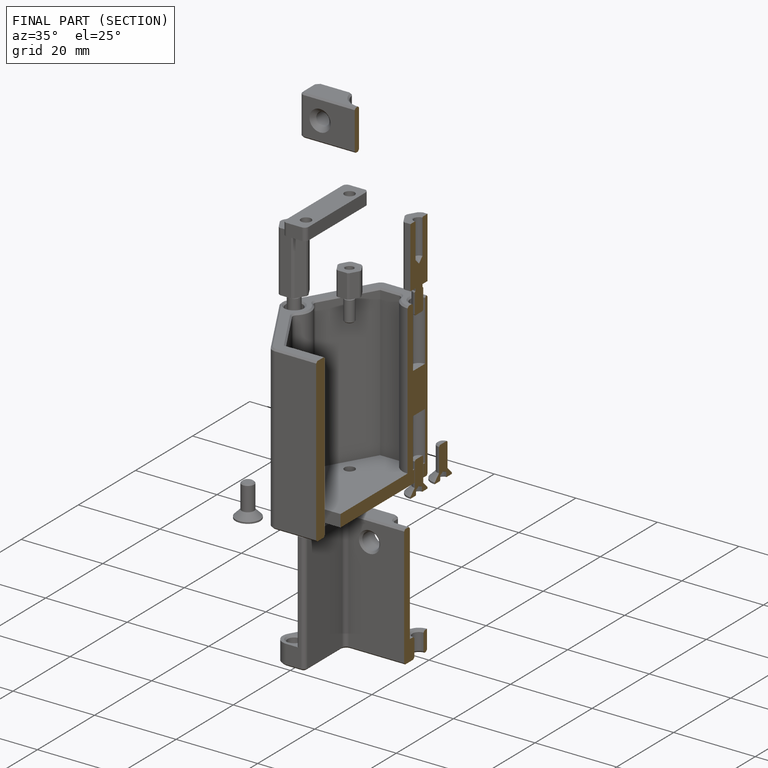
[diagram: finished part — half-section view (interior)]
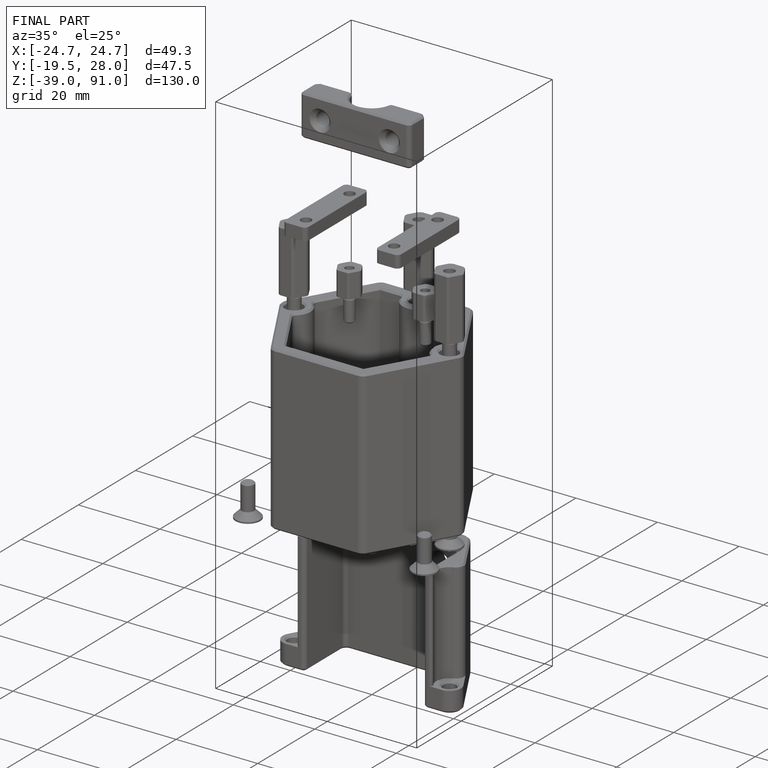
[diagram: finished part — iso view with bounding-box wireframe]
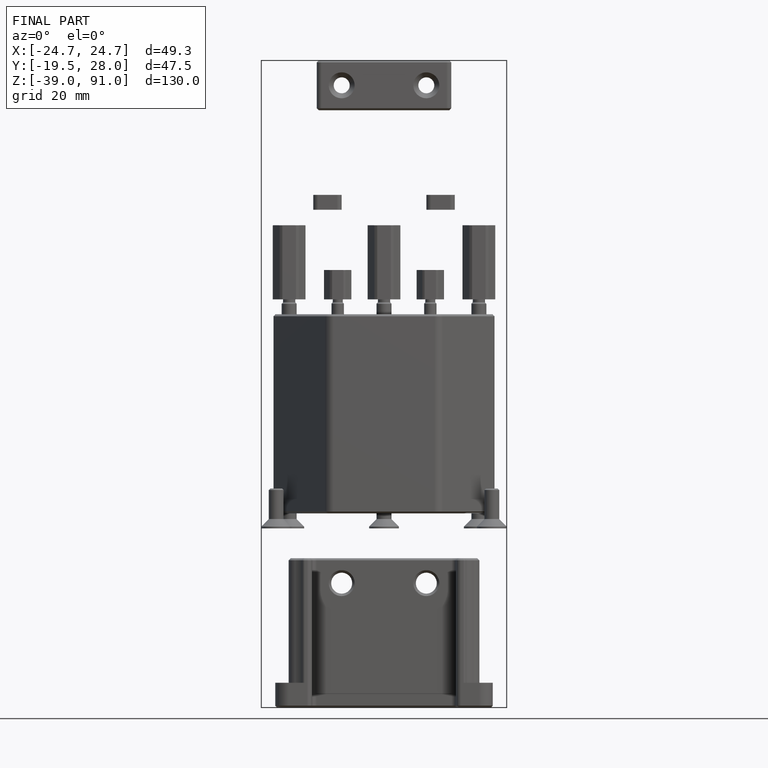
[diagram: finished part — front view with bounding-box wireframe]
